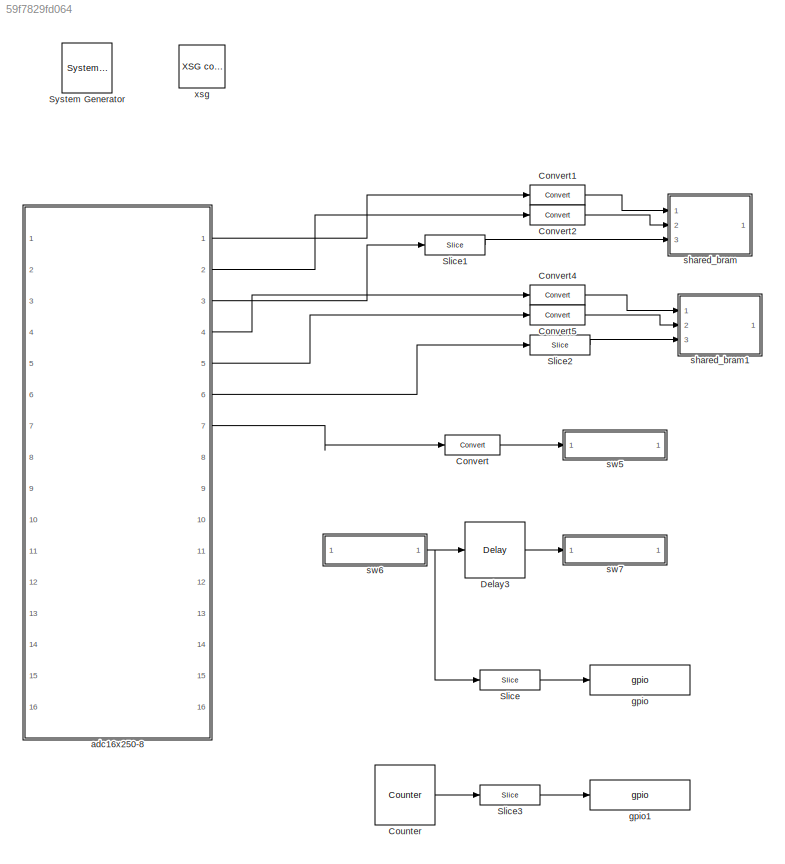
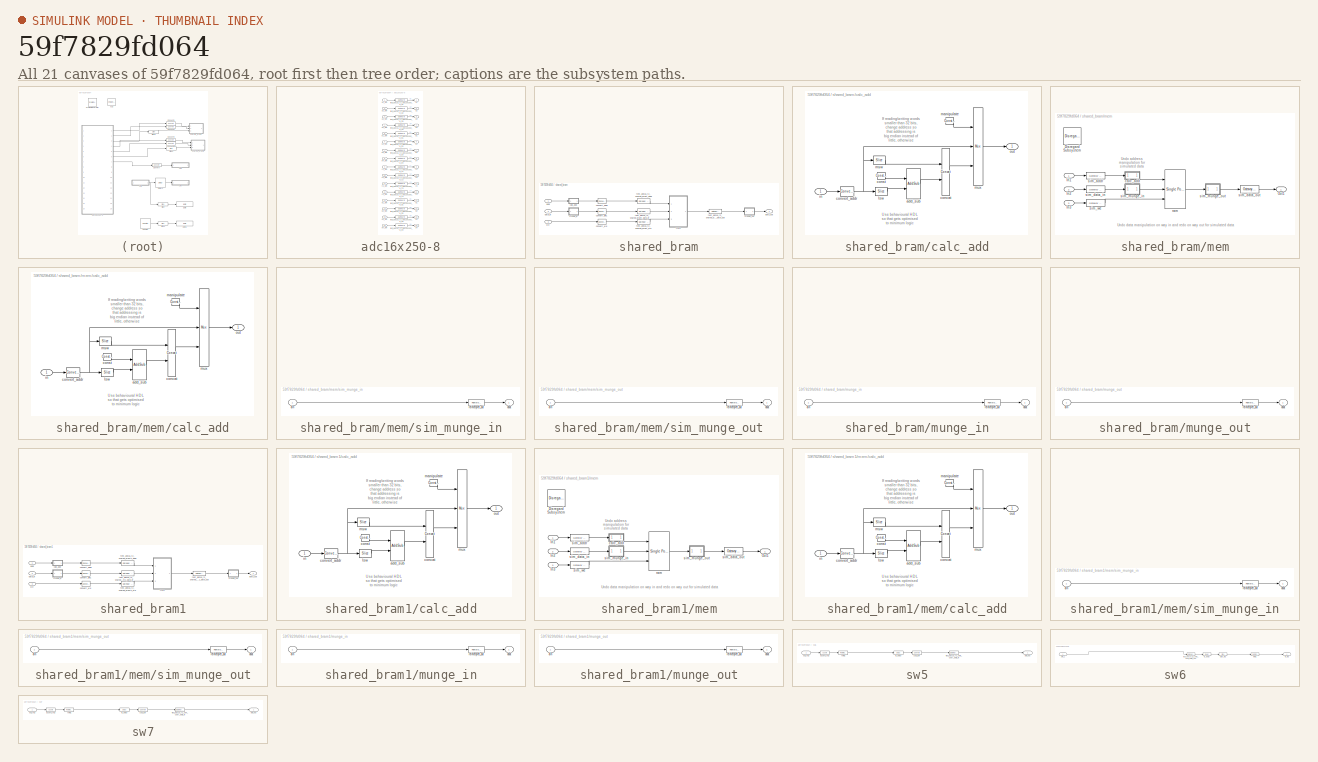
[diagram: thumbnail index - all 21 canvases of the model, root first then tree order]
MODEL slx_59f7829fd064
KIND model
BLOCK [Reference]  System Generator  REF=xbsIndex_r4/ System Generator
  AttributesFormatString = System\nGenerator
  Impl_file = ISE Defaults
  Ports = []
  SourceBlock = xbsIndex_r4/ System Generator
  SourceType = Xilinx System Generator Block
  Synth_file = XST Defaults
  Tag = genX
  UserDataPersistent = on
  block_type = sysgen
  clock_wrapper = Clock Enables
  core_generation = According to Block Masks
  dbl_ovrd = According to Block Masks
  dcm_input_clock_period = 100
  deprecated_control = off
  directory = ./test_adc16_r2/sysgen
  eval_field = 0
  has_advanced_control = 0
  incr_netlist = off
  infoedit = System Generator
  package = ff1759
  part = xc6vsx475t
  proj_type = Project Navigator
  run_coregen = off
  sg_icon_stat = 50,50,0,0,token,white,0,58c5b5770fe5f7c311f53dbc6e73f0f6,right,,[ ],[ ]
  sg_mask_display = fprintf('','COMMENT: begin icon graphics');\npatch([0 50 50 0 0 ],[0 0 50 50 0 ],[1 1 1 ]);\npatch([1.6375 16.81 27.31 37.81 48.31 27.31 12.1375 1.6375 ],[36.655 36.655 47.155 36.655 47.155 47.155 47.155 36.655 ],[0.933333 0.203922 0.141176 ]);\npatch([12.1375 27.31 16.81 1.6375 12.1375 ],[26.155 26.155 36.655 36.655 26.155 ],[0.698039 0.0313725 0.219608 ]);\npatch([1.6375 16.81 27.31 12.1375 1.6375 ]...<+327ch>
  sggui_pos = 232,343,464,400
  simulink_period = 1
  speed = -1
  synthesis_tool = XST
  sysclk_period = 5
  testbench = off
  trim_vbits = Everywhere in SubSystem
  xilinxfamily = virtex6
BLOCK [Reference] Convert  REF=xbsIndex_r4/Convert
  Ports = [1, 1]
  SourceBlock = xbsIndex_r4/Convert
  SourceType = Xilinx Type Converter Block
  arith_type = Unsigned
  bin_pt = 0
  block_type = convert
  block_version = 11.4
  dbl_ovrd = off
  en = off
  exp_bits = 8
  float_type = Single
  fraction_bits = 24
  gui_display_data_type = Fixed-point
  has_advanced_control = 0
  infoedit = Hardware notes: rounding and saturating require hardware resources; truncating and wrapping do not.
  latency = 2
  n_bits = 32
  overflow = Wrap
  pipeline = off
  quantization = Truncate
  sg_icon_stat = 55,20,1,1,white,blue,0,b61d041b,right,,[ ],[ ]
  sg_mask_display = fprintf('','COMMENT: begin icon graphics');\npatch([0 55 55 0 0 ],[0 0 20 20 0 ],[0.77 0.82 0.91 ]);\nplot([0 55 55 0 0 ],[0 0 20 20 0 ]);\npatch([22.55 25.44 27.44 29.44 31.44 27.44 24.55 22.55 ],[12.22 12.22 14.22 12.22 14.22 14.22 14.22 12.22 ],[1 1 1 ]);\npatch([24.55 27.44 25.44 22.55 24.55 ],[10.22 10.22 12.22 12.22 10.22 ],[0.931 0.946 0.973 ]);\npatch([22.55 25.44 27.44 24.55 22.55 ],[8.22 8.22...<+393ch>  <repeated x5 — deduplicated; at blocks: Convert, Convert1, Convert2, Convert4, Convert5>
  sggui_pos = 20,20,636,521
  xl_area = [0,0,0,0,0,0,0]
  xl_use_area = off
BLOCK [Reference] Convert1  REF=xbsIndex_r4/Convert
  Ports = [1, 1]
  SourceBlock = xbsIndex_r4/Convert
  SourceType = Xilinx Type Converter Block
  arith_type = Unsigned
  bin_pt = 0
  block_type = convert
  block_version = 11.4
  dbl_ovrd = off
  en = off
  exp_bits = 8
  float_type = Single
  fraction_bits = 24
  gui_display_data_type = Fixed-point
  has_advanced_control = 0
  infoedit = Hardware notes: rounding and saturating require hardware resources; truncating and wrapping do not.
  latency = 2
  n_bits = 11
  overflow = Wrap
  pipeline = off
  quantization = Truncate
  sg_icon_stat = 55,20,1,1,white,blue,0,b61d041b,right,,[ ],[ ]
  sggui_pos = 20,20,636,521
  xl_area = [0,0,0,0,0,0,0]
  xl_use_area = off
BLOCK [Reference] Convert2  REF=xbsIndex_r4/Convert
  Ports = [1, 1]
  SourceBlock = xbsIndex_r4/Convert
  SourceType = Xilinx Type Converter Block
  arith_type = Unsigned
  bin_pt = 0
  block_type = convert
  block_version = 11.4
  dbl_ovrd = off
  en = off
  exp_bits = 8
  float_type = Single
  fraction_bits = 24
  gui_display_data_type = Fixed-point
  has_advanced_control = 0
  infoedit = Hardware notes: rounding and saturating require hardware resources; truncating and wrapping do not.
  latency = 2
  n_bits = 32
  overflow = Wrap
  pipeline = off
  quantization = Truncate
  sg_icon_stat = 55,20,1,1,white,blue,0,b61d041b,right,,[ ],[ ]
  sggui_pos = 20,26,663,714
  xl_area = [0,0,0,0,0,0,0]
  xl_use_area = off
BLOCK [Reference] Convert4  REF=xbsIndex_r4/Convert
  Ports = [1, 1]
  SourceBlock = xbsIndex_r4/Convert
  SourceType = Xilinx Type Converter Block
  arith_type = Unsigned
  bin_pt = 0
  block_type = convert
  block_version = 11.4
  dbl_ovrd = off
  en = off
  exp_bits = 8
  float_type = Single
  fraction_bits = 24
  gui_display_data_type = Fixed-point
  has_advanced_control = 0
  infoedit = Hardware notes: rounding and saturating require hardware resources; truncating and wrapping do not.
  latency = 2
  n_bits = 11
  overflow = Wrap
  pipeline = off
  quantization = Truncate
  sg_icon_stat = 55,20,1,1,white,blue,0,b61d041b,right,,[ ],[ ]
  sggui_pos = 20,20,636,521
  xl_area = [0,0,0,0,0,0,0]
  xl_use_area = off
BLOCK [Reference] Convert5  REF=xbsIndex_r4/Convert
  Ports = [1, 1]
  SourceBlock = xbsIndex_r4/Convert
  SourceType = Xilinx Type Converter Block
  arith_type = Unsigned
  bin_pt = 0
  block_type = convert
  block_version = 11.4
  dbl_ovrd = off
  en = off
  exp_bits = 8
  float_type = Single
  fraction_bits = 24
  gui_display_data_type = Fixed-point
  has_advanced_control = 0
  infoedit = Hardware notes: rounding and saturating require hardware resources; truncating and wrapping do not.
  latency = 2
  n_bits = 32
  overflow = Wrap
  pipeline = off
  quantization = Truncate
  sg_icon_stat = 55,20,1,1,white,blue,0,b61d041b,right,,[ ],[ ]
  sggui_pos = 20,26,663,714
  xl_area = [0,0,0,0,0,0,0]
  xl_use_area = off
BLOCK [Reference] Counter  REF=xbsIndex_r4/Counter
  Ports = [0, 1]
  SourceBlock = xbsIndex_r4/Counter
  SourceType = Xilinx Counter Block
  arith_type = Unsigned
  bin_pt = 0
  block_type = counter
  cnt_by_val = 1
  cnt_to = Inf
  cnt_type = Free Running
  dbl_ovrd = off
  en = off
  explicit_period = on
  has_advanced_control = 0
  implementation = Fabric
  infoedit = Hardware notes: Free running counters are the least expensive in hardware.  A count limited counter is implemented by combining a counter with a comparator.
  load_pin = off
  n_bits = 27
  operation = Up
  period = 1
  rst = off
  sg_icon_stat = 60,60,0,1,white,blue,0,7ac47ef5,right,,[ ],[ ]
  sg_mask_display = fprintf('','COMMENT: begin icon graphics');\npatch([0 60 60 0 0 ],[0 0 60 60 0 ],[0.77 0.82 0.91 ]);\nplot([0 60 60 0 0 ],[0 0 60 60 0 ]);\npatch([12.2 23.76 31.76 39.76 47.76 31.76 20.2 12.2 ],[38.88 38.88 46.88 38.88 46.88 46.88 46.88 38.88 ],[1 1 1 ]);\npatch([20.2 31.76 23.76 12.2 20.2 ],[30.88 30.88 38.88 38.88 30.88 ],[0.931 0.946 0.973 ]);\npatch([12.2 23.76 31.76 20.2 12.2 ],[22.88 22.88 30.88 ...<+321ch>
  sggui_pos = 20,46,395,830
  start_count = 0
  use_behavioral_HDL = off
  xl_area = [0,0,0,0,0,0,0]
  xl_use_area = off
BLOCK [Reference] Delay3  REF=xbsIndex_r4/Delay
  Ports = [1, 1]
  SourceBlock = xbsIndex_r4/Delay
  SourceType = Xilinx Delay Block
  block_type = delay
  dbl_ovrd = off
  en = off
  has_advanced_control = 0
  infoedit = Hardware notes: A delay line is a chain, each link of which is an SRL16 followed by a flip-flop.
  infoeditControl = Selection of Reset will increase slice count due to use of real FFs and instead of SRLs
  latency = 5
  reg_retiming = off
  rst = off
  sg_icon_stat = 60,56,1,1,white,blue,0,ec356abf,right,,[ ],[ ]
  sg_mask_display = fprintf('','COMMENT: begin icon graphics');\npatch([0 60 60 0 0 ],[0 0 56 56 0 ],[0.77 0.82 0.91 ]);\nplot([0 60 60 0 0 ],[0 0 56 56 0 ]);\npatch([12.2 23.76 31.76 39.76 47.76 31.76 20.2 12.2 ],[36.88 36.88 44.88 36.88 44.88 44.88 44.88 36.88 ],[1 1 1 ]);\npatch([20.2 31.76 23.76 12.2 20.2 ],[28.88 28.88 36.88 36.88 28.88 ],[0.931 0.946 0.973 ]);\npatch([12.2 23.76 31.76 20.2 12.2 ],[20.88 20.88 28.88 ...<+308ch>
  sggui_pos = 20,45,447,409
  xl_area = [0,0,0,0,0,0,0]
  xl_use_area = off
BLOCK [Reference] Slice  REF=xbsIndex_r4/Slice
  Ports = [1, 1]
  SourceBlock = xbsIndex_r4/Slice
  SourceType = Xilinx Bit Slice Extractor Block
  base0 = LSB of Input
  base1 = MSB of Input
  bit0 = 0
  bit1 = 0
  block_type = slice
  block_version = 11.4
  boolean_output = on
  dbl_ovrd = off
  has_advanced_control = 0
  infoedit = Extracts a given range of bits from each input sample and presents it at the output.  The output type is ordinarily unsigned with binary point at zero, but can be Boolean when the slice is one bit wide.<br><br>Hardware notes: In hardware this block costs nothing.  <repeated x13 — deduplicated; at blocks: Slice, Slice1, Slice2, Slice3, lsw, msw, slice_reg>
  mode = Lower Bit Location + Width
  nbits = 3
  sg_icon_stat = 60,20,1,1,white,blue,0,1fd851a7,right,,[ ],[ ]
  sg_mask_display = fprintf('','COMMENT: begin icon graphics');\npatch([0 60 60 0 0 ],[0 0 20 20 0 ],[0.77 0.82 0.91 ]);\nplot([0 60 60 0 0 ],[0 0 20 20 0 ]);\npatch([25.55 28.44 30.44 32.44 34.44 30.44 27.55 25.55 ],[12.22 12.22 14.22 12.22 14.22 14.22 14.22 12.22 ],[1 1 1 ]);\npatch([27.55 30.44 28.44 25.55 27.55 ],[10.22 10.22 12.22 12.22 10.22 ],[0.931 0.946 0.973 ]);\npatch([25.55 28.44 30.44 27.55 25.55 ],[8.22 8.22...<+310ch>  <repeated x4 — deduplicated; at blocks: Slice, Slice1, Slice2, Slice3>
  sggui_pos = 20,26,687,621
BLOCK [Reference] Slice1  REF=xbsIndex_r4/Slice
  Ports = [1, 1]
  SourceBlock = xbsIndex_r4/Slice
  SourceType = Xilinx Bit Slice Extractor Block
  base0 = LSB of Input
  base1 = MSB of Input
  bit0 = 0
  bit1 = 0
  block_type = slice
  block_version = 11.4
  boolean_output = on
  dbl_ovrd = off
  has_advanced_control = 0
  mode = Lower Bit Location + Width
  nbits = 3
  sg_icon_stat = 60,20,1,1,white,blue,0,1fd851a7,right,,[ ],[ ]
  sggui_pos = 20,26,687,621
BLOCK [Reference] Slice2  REF=xbsIndex_r4/Slice
  Ports = [1, 1]
  SourceBlock = xbsIndex_r4/Slice
  SourceType = Xilinx Bit Slice Extractor Block
  base0 = LSB of Input
  base1 = MSB of Input
  bit0 = 0
  bit1 = 0
  block_type = slice
  block_version = 11.4
  boolean_output = on
  dbl_ovrd = off
  has_advanced_control = 0
  mode = Lower Bit Location + Width
  nbits = 3
  sg_icon_stat = 60,20,1,1,white,blue,0,1fd851a7,right,,[ ],[ ]
  sggui_pos = 20,26,687,621
BLOCK [Reference] Slice3  REF=xbsIndex_r4/Slice
  Ports = [1, 1]
  SourceBlock = xbsIndex_r4/Slice
  SourceType = Xilinx Bit Slice Extractor Block
  base0 = LSB of Input
  base1 = MSB of Input
  bit0 = 0
  bit1 = 0
  block_type = slice
  block_version = 11.4
  boolean_output = on
  dbl_ovrd = off
  has_advanced_control = 0
  mode = Upper Bit Location + Width
  nbits = 3
  sg_icon_stat = 60,20,1,1,white,blue,0,1fd851a7,right,,[ ],[ ]
  sggui_pos = 20,26,687,621
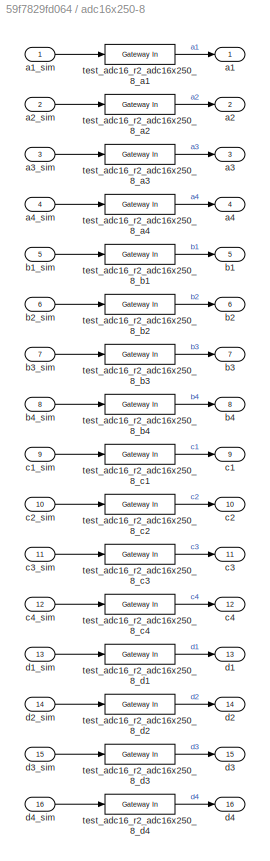
BLOCK [SubSystem] adc16x250-8
  AncestorBlock = xps_library/ADCs/adc16x250-8
  AttributesFormatString = r2 rev%<roach2_rev>\nzdok rev%<zdok_rev>
  FunctionWithSeparateData = off
  MaskHideContents = off
  MinAlgLoopOccurrences = off
  Opaque = off
  Ports = [16, 16]
  PropExecContextOutsideSubsystem = off
  RTWSystemCode = Auto
  RequestExecContextInheritance = off
  Tag = xps:adc16
  UserDataPersistent = on
BLOCK [Outport] adc16x250-8/a1
  IconDisplay = Port number
BLOCK [Inport] adc16x250-8/a1_sim
  IconDisplay = Port number
BLOCK [Outport] adc16x250-8/a2
  IconDisplay = Port number
  Port = 2
BLOCK [Inport] adc16x250-8/a2_sim
  IconDisplay = Port number
  Port = 2
BLOCK [Outport] adc16x250-8/a3
  IconDisplay = Port number
  Port = 3
BLOCK [Inport] adc16x250-8/a3_sim
  IconDisplay = Port number
  Port = 3
BLOCK [Outport] adc16x250-8/a4
  IconDisplay = Port number
  Port = 4
BLOCK [Inport] adc16x250-8/a4_sim
  IconDisplay = Port number
  Port = 4
BLOCK [Outport] adc16x250-8/b1
  IconDisplay = Port number
  Port = 5
BLOCK [Inport] adc16x250-8/b1_sim
  IconDisplay = Port number
  Port = 5
BLOCK [Outport] adc16x250-8/b2
  IconDisplay = Port number
  Port = 6
BLOCK [Inport] adc16x250-8/b2_sim
  IconDisplay = Port number
  Port = 6
BLOCK [Outport] adc16x250-8/b3
  IconDisplay = Port number
  Port = 7
BLOCK [Inport] adc16x250-8/b3_sim
  IconDisplay = Port number
  Port = 7
BLOCK [Outport] adc16x250-8/b4
  IconDisplay = Port number
  Port = 8
BLOCK [Inport] adc16x250-8/b4_sim
  IconDisplay = Port number
  Port = 8
BLOCK [Outport] adc16x250-8/c1
  IconDisplay = Port number
  Port = 9
BLOCK [Inport] adc16x250-8/c1_sim
  IconDisplay = Port number
  Port = 9
BLOCK [Outport] adc16x250-8/c2
  IconDisplay = Port number
  Port = 10
BLOCK [Inport] adc16x250-8/c2_sim
  IconDisplay = Port number
  Port = 10
BLOCK [Outport] adc16x250-8/c3
  IconDisplay = Port number
  Port = 11
BLOCK [Inport] adc16x250-8/c3_sim
  IconDisplay = Port number
  Port = 11
BLOCK [Outport] adc16x250-8/c4
  IconDisplay = Port number
  Port = 12
BLOCK [Inport] adc16x250-8/c4_sim
  IconDisplay = Port number
  Port = 12
BLOCK [Outport] adc16x250-8/d1
  IconDisplay = Port number
  Port = 13
BLOCK [Inport] adc16x250-8/d1_sim
  IconDisplay = Port number
  Port = 13
BLOCK [Outport] adc16x250-8/d2
  IconDisplay = Port number
  Port = 14
BLOCK [Inport] adc16x250-8/d2_sim
  IconDisplay = Port number
  Port = 14
BLOCK [Outport] adc16x250-8/d3
  IconDisplay = Port number
  Port = 15
BLOCK [Inport] adc16x250-8/d3_sim
  IconDisplay = Port number
  Port = 15
BLOCK [Outport] adc16x250-8/d4
  IconDisplay = Port number
  Port = 16
BLOCK [Inport] adc16x250-8/d4_sim
  IconDisplay = Port number
  Port = 16
BLOCK [Reference] adc16x250-8/test_adc16_r2_adc16x250_8_a1  REF=xbsIndex_r4/Gateway In
  ADCChannel = '1'
  LOCs = {}
  Ports = [1, 1]
  SourceBlock = xbsIndex_r4/Gateway In
  SourceType = Xilinx Gateway In Block
  UseAsADC = off
  arith_type = Signed  (2's comp)
  bin_pt = 7
  block_type = gatewayin
  dbl_ovrd = off
  exp_width = 8
  frac_width = 24
  gui_display_data_type = Fixed-point
  has_advanced_control = 0
  hdl_port = on
  infoedit = Gateway in block.  Converts inputs of type Simulink integer, single, double and fixed-point to  Xilinx fixed-point or floating-point data type.<br><br>Hardware notes:  In hardware these blocks become top level input ports.  <repeated x21 — deduplicated; at blocks: test_adc16_r2_adc16x250_8_a1, test_adc16_r2_adc16x250_8_a2, test_adc16_r2_adc16x250_8_a3, test_adc16_r2_adc16x250_8_a4, test_adc16_r2_adc16x250_8_b1, test_adc16_r2_adc16x250_8_b2, test_adc16_r2_adc16x250_8_b3, test_adc16_r2_adc16x250_8_b4, test_adc16_r2_adc16x250_8_c1, test_adc16_r2_adc16x250_8_c2, test_adc16_r2_adc16x250_8_c3, test_adc16_r2_adc16x250_8_c4, test_adc16_r2_adc16x250_8_d1, test_adc16_r2_adc16x250_8_d2, test_adc16_r2_adc16x250_8_d3, test_adc16_r2_adc16x250_8_d4, +4 more>
  inherit_from_input = off
  locs_specified = off
  n_bits = 8
  overflow = Saturate
  period = 1
  preci_type = Single
  quantization = Round  (unbiased: +/- Inf)
  sg_icon_stat = 70,20,1,1,white,yellow,1,00d3666e,right,,[ ],[ ]
  sg_mask_display = fprintf('','COMMENT: begin icon graphics');\npatch([0 70 70 0 0 ],[0 0 20 20 0 ],[0.95 0.93 0.65 ]);\nplot([0 70 70 0 0 ],[0 0 20 20 0 ]);\npatch([30.55 33.44 35.44 37.44 39.44 35.44 32.55 30.55 ],[12.22 12.22 14.22 12.22 14.22 14.22 14.22 12.22 ],[1 1 1 ]);\npatch([32.55 35.44 33.44 30.55 32.55 ],[10.22 10.22 12.22 12.22 10.22 ],[0.985 0.979 0.895 ]);\npatch([30.55 33.44 35.44 32.55 30.55 ],[8.22 8.22...<+383ch>  <repeated x16 — deduplicated; at blocks: test_adc16_r2_adc16x250_8_a1, test_adc16_r2_adc16x250_8_a2, test_adc16_r2_adc16x250_8_a3, test_adc16_r2_adc16x250_8_a4, test_adc16_r2_adc16x250_8_b1, test_adc16_r2_adc16x250_8_b2, test_adc16_r2_adc16x250_8_b3, test_adc16_r2_adc16x250_8_b4, test_adc16_r2_adc16x250_8_c1, test_adc16_r2_adc16x250_8_c2, test_adc16_r2_adc16x250_8_c3, test_adc16_r2_adc16x250_8_c4, test_adc16_r2_adc16x250_8_d1, test_adc16_r2_adc16x250_8_d2, test_adc16_r2_adc16x250_8_d3, test_adc16_r2_adc16x250_8_d4>
  sggui_pos = -1,-1,-1,-1
  timing_constraint = None
  xl_area = [0,0,0,0,0,0,0]
  xl_use_area = off
BLOCK [Reference] adc16x250-8/test_adc16_r2_adc16x250_8_a2  REF=xbsIndex_r4/Gateway In
  ADCChannel = '1'
  LOCs = {}
  Ports = [1, 1]
  SourceBlock = xbsIndex_r4/Gateway In
  SourceType = Xilinx Gateway In Block
  UseAsADC = off
  arith_type = Signed  (2's comp)
  bin_pt = 7
  block_type = gatewayin
  dbl_ovrd = off
  exp_width = 8
  frac_width = 24
  gui_display_data_type = Fixed-point
  has_advanced_control = 0
  hdl_port = on
  inherit_from_input = off
  locs_specified = off
  n_bits = 8
  overflow = Saturate
  period = 1
  preci_type = Single
  quantization = Round  (unbiased: +/- Inf)
  sg_icon_stat = 70,20,1,1,white,yellow,1,00d3666e,right,,[ ],[ ]
  sggui_pos = -1,-1,-1,-1
  timing_constraint = None
  xl_area = [0,0,0,0,0,0,0]
  xl_use_area = off
BLOCK [Reference] adc16x250-8/test_adc16_r2_adc16x250_8_a3  REF=xbsIndex_r4/Gateway In
  ADCChannel = '1'
  LOCs = {}
  Ports = [1, 1]
  SourceBlock = xbsIndex_r4/Gateway In
  SourceType = Xilinx Gateway In Block
  UseAsADC = off
  arith_type = Signed  (2's comp)
  bin_pt = 7
  block_type = gatewayin
  dbl_ovrd = off
  exp_width = 8
  frac_width = 24
  gui_display_data_type = Fixed-point
  has_advanced_control = 0
  hdl_port = on
  inherit_from_input = off
  locs_specified = off
  n_bits = 8
  overflow = Saturate
  period = 1
  preci_type = Single
  quantization = Round  (unbiased: +/- Inf)
  sg_icon_stat = 70,20,1,1,white,yellow,1,00d3666e,right,,[ ],[ ]
  sggui_pos = -1,-1,-1,-1
  timing_constraint = None
  xl_area = [0,0,0,0,0,0,0]
  xl_use_area = off
BLOCK [Reference] adc16x250-8/test_adc16_r2_adc16x250_8_a4  REF=xbsIndex_r4/Gateway In
  ADCChannel = '1'
  LOCs = {}
  Ports = [1, 1]
  SourceBlock = xbsIndex_r4/Gateway In
  SourceType = Xilinx Gateway In Block
  UseAsADC = off
  arith_type = Signed  (2's comp)
  bin_pt = 7
  block_type = gatewayin
  dbl_ovrd = off
  exp_width = 8
  frac_width = 24
  gui_display_data_type = Fixed-point
  has_advanced_control = 0
  hdl_port = on
  inherit_from_input = off
  locs_specified = off
  n_bits = 8
  overflow = Saturate
  period = 1
  preci_type = Single
  quantization = Round  (unbiased: +/- Inf)
  sg_icon_stat = 70,20,1,1,white,yellow,1,00d3666e,right,,[ ],[ ]
  sggui_pos = -1,-1,-1,-1
  timing_constraint = None
  xl_area = [0,0,0,0,0,0,0]
  xl_use_area = off
BLOCK [Reference] adc16x250-8/test_adc16_r2_adc16x250_8_b1  REF=xbsIndex_r4/Gateway In
  ADCChannel = '1'
  LOCs = {}
  Ports = [1, 1]
  SourceBlock = xbsIndex_r4/Gateway In
  SourceType = Xilinx Gateway In Block
  UseAsADC = off
  arith_type = Signed  (2's comp)
  bin_pt = 7
  block_type = gatewayin
  dbl_ovrd = off
  exp_width = 8
  frac_width = 24
  gui_display_data_type = Fixed-point
  has_advanced_control = 0
  hdl_port = on
  inherit_from_input = off
  locs_specified = off
  n_bits = 8
  overflow = Saturate
  period = 1
  preci_type = Single
  quantization = Round  (unbiased: +/- Inf)
  sg_icon_stat = 70,20,1,1,white,yellow,1,00d3666e,right,,[ ],[ ]
  sggui_pos = -1,-1,-1,-1
  timing_constraint = None
  xl_area = [0,0,0,0,0,0,0]
  xl_use_area = off
BLOCK [Reference] adc16x250-8/test_adc16_r2_adc16x250_8_b2  REF=xbsIndex_r4/Gateway In
  ADCChannel = '1'
  LOCs = {}
  Ports = [1, 1]
  SourceBlock = xbsIndex_r4/Gateway In
  SourceType = Xilinx Gateway In Block
  UseAsADC = off
  arith_type = Signed  (2's comp)
  bin_pt = 7
  block_type = gatewayin
  dbl_ovrd = off
  exp_width = 8
  frac_width = 24
  gui_display_data_type = Fixed-point
  has_advanced_control = 0
  hdl_port = on
  inherit_from_input = off
  locs_specified = off
  n_bits = 8
  overflow = Saturate
  period = 1
  preci_type = Single
  quantization = Round  (unbiased: +/- Inf)
  sg_icon_stat = 70,20,1,1,white,yellow,1,00d3666e,right,,[ ],[ ]
  sggui_pos = -1,-1,-1,-1
  timing_constraint = None
  xl_area = [0,0,0,0,0,0,0]
  xl_use_area = off
BLOCK [Reference] adc16x250-8/test_adc16_r2_adc16x250_8_b3  REF=xbsIndex_r4/Gateway In
  ADCChannel = '1'
  LOCs = {}
  Ports = [1, 1]
  SourceBlock = xbsIndex_r4/Gateway In
  SourceType = Xilinx Gateway In Block
  UseAsADC = off
  arith_type = Signed  (2's comp)
  bin_pt = 7
  block_type = gatewayin
  dbl_ovrd = off
  exp_width = 8
  frac_width = 24
  gui_display_data_type = Fixed-point
  has_advanced_control = 0
  hdl_port = on
  inherit_from_input = off
  locs_specified = off
  n_bits = 8
  overflow = Saturate
  period = 1
  preci_type = Single
  quantization = Round  (unbiased: +/- Inf)
  sg_icon_stat = 70,20,1,1,white,yellow,1,00d3666e,right,,[ ],[ ]
  sggui_pos = -1,-1,-1,-1
  timing_constraint = None
  xl_area = [0,0,0,0,0,0,0]
  xl_use_area = off
BLOCK [Reference] adc16x250-8/test_adc16_r2_adc16x250_8_b4  REF=xbsIndex_r4/Gateway In
  ADCChannel = '1'
  LOCs = {}
  Ports = [1, 1]
  SourceBlock = xbsIndex_r4/Gateway In
  SourceType = Xilinx Gateway In Block
  UseAsADC = off
  arith_type = Signed  (2's comp)
  bin_pt = 7
  block_type = gatewayin
  dbl_ovrd = off
  exp_width = 8
  frac_width = 24
  gui_display_data_type = Fixed-point
  has_advanced_control = 0
  hdl_port = on
  inherit_from_input = off
  locs_specified = off
  n_bits = 8
  overflow = Saturate
  period = 1
  preci_type = Single
  quantization = Round  (unbiased: +/- Inf)
  sg_icon_stat = 70,20,1,1,white,yellow,1,00d3666e,right,,[ ],[ ]
  sggui_pos = -1,-1,-1,-1
  timing_constraint = None
  xl_area = [0,0,0,0,0,0,0]
  xl_use_area = off
BLOCK [Reference] adc16x250-8/test_adc16_r2_adc16x250_8_c1  REF=xbsIndex_r4/Gateway In
  ADCChannel = '1'
  LOCs = {}
  Ports = [1, 1]
  SourceBlock = xbsIndex_r4/Gateway In
  SourceType = Xilinx Gateway In Block
  UseAsADC = off
  arith_type = Signed  (2's comp)
  bin_pt = 7
  block_type = gatewayin
  dbl_ovrd = off
  exp_width = 8
  frac_width = 24
  gui_display_data_type = Fixed-point
  has_advanced_control = 0
  hdl_port = on
  inherit_from_input = off
  locs_specified = off
  n_bits = 8
  overflow = Saturate
  period = 1
  preci_type = Single
  quantization = Round  (unbiased: +/- Inf)
  sg_icon_stat = 70,20,1,1,white,yellow,1,00d3666e,right,,[ ],[ ]
  sggui_pos = -1,-1,-1,-1
  timing_constraint = None
  xl_area = [0,0,0,0,0,0,0]
  xl_use_area = off
BLOCK [Reference] adc16x250-8/test_adc16_r2_adc16x250_8_c2  REF=xbsIndex_r4/Gateway In
  ADCChannel = '1'
  LOCs = {}
  Ports = [1, 1]
  SourceBlock = xbsIndex_r4/Gateway In
  SourceType = Xilinx Gateway In Block
  UseAsADC = off
  arith_type = Signed  (2's comp)
  bin_pt = 7
  block_type = gatewayin
  dbl_ovrd = off
  exp_width = 8
  frac_width = 24
  gui_display_data_type = Fixed-point
  has_advanced_control = 0
  hdl_port = on
  inherit_from_input = off
  locs_specified = off
  n_bits = 8
  overflow = Saturate
  period = 1
  preci_type = Single
  quantization = Round  (unbiased: +/- Inf)
  sg_icon_stat = 70,20,1,1,white,yellow,1,00d3666e,right,,[ ],[ ]
  sggui_pos = -1,-1,-1,-1
  timing_constraint = None
  xl_area = [0,0,0,0,0,0,0]
  xl_use_area = off
BLOCK [Reference] adc16x250-8/test_adc16_r2_adc16x250_8_c3  REF=xbsIndex_r4/Gateway In
  ADCChannel = '1'
  LOCs = {}
  Ports = [1, 1]
  SourceBlock = xbsIndex_r4/Gateway In
  SourceType = Xilinx Gateway In Block
  UseAsADC = off
  arith_type = Signed  (2's comp)
  bin_pt = 7
  block_type = gatewayin
  dbl_ovrd = off
  exp_width = 8
  frac_width = 24
  gui_display_data_type = Fixed-point
  has_advanced_control = 0
  hdl_port = on
  inherit_from_input = off
  locs_specified = off
  n_bits = 8
  overflow = Saturate
  period = 1
  preci_type = Single
  quantization = Round  (unbiased: +/- Inf)
  sg_icon_stat = 70,20,1,1,white,yellow,1,00d3666e,right,,[ ],[ ]
  sggui_pos = -1,-1,-1,-1
  timing_constraint = None
  xl_area = [0,0,0,0,0,0,0]
  xl_use_area = off
BLOCK [Reference] adc16x250-8/test_adc16_r2_adc16x250_8_c4  REF=xbsIndex_r4/Gateway In
  ADCChannel = '1'
  LOCs = {}
  Ports = [1, 1]
  SourceBlock = xbsIndex_r4/Gateway In
  SourceType = Xilinx Gateway In Block
  UseAsADC = off
  arith_type = Signed  (2's comp)
  bin_pt = 7
  block_type = gatewayin
  dbl_ovrd = off
  exp_width = 8
  frac_width = 24
  gui_display_data_type = Fixed-point
  has_advanced_control = 0
  hdl_port = on
  inherit_from_input = off
  locs_specified = off
  n_bits = 8
  overflow = Saturate
  period = 1
  preci_type = Single
  quantization = Round  (unbiased: +/- Inf)
  sg_icon_stat = 70,20,1,1,white,yellow,1,00d3666e,right,,[ ],[ ]
  sggui_pos = -1,-1,-1,-1
  timing_constraint = None
  xl_area = [0,0,0,0,0,0,0]
  xl_use_area = off
BLOCK [Reference] adc16x250-8/test_adc16_r2_adc16x250_8_d1  REF=xbsIndex_r4/Gateway In
  ADCChannel = '1'
  LOCs = {}
  Ports = [1, 1]
  SourceBlock = xbsIndex_r4/Gateway In
  SourceType = Xilinx Gateway In Block
  UseAsADC = off
  arith_type = Signed  (2's comp)
  bin_pt = 7
  block_type = gatewayin
  dbl_ovrd = off
  exp_width = 8
  frac_width = 24
  gui_display_data_type = Fixed-point
  has_advanced_control = 0
  hdl_port = on
  inherit_from_input = off
  locs_specified = off
  n_bits = 8
  overflow = Saturate
  period = 1
  preci_type = Single
  quantization = Round  (unbiased: +/- Inf)
  sg_icon_stat = 70,20,1,1,white,yellow,1,00d3666e,right,,[ ],[ ]
  sggui_pos = -1,-1,-1,-1
  timing_constraint = None
  xl_area = [0,0,0,0,0,0,0]
  xl_use_area = off
BLOCK [Reference] adc16x250-8/test_adc16_r2_adc16x250_8_d2  REF=xbsIndex_r4/Gateway In
  ADCChannel = '1'
  LOCs = {}
  Ports = [1, 1]
  SourceBlock = xbsIndex_r4/Gateway In
  SourceType = Xilinx Gateway In Block
  UseAsADC = off
  arith_type = Signed  (2's comp)
  bin_pt = 7
  block_type = gatewayin
  dbl_ovrd = off
  exp_width = 8
  frac_width = 24
  gui_display_data_type = Fixed-point
  has_advanced_control = 0
  hdl_port = on
  inherit_from_input = off
  locs_specified = off
  n_bits = 8
  overflow = Saturate
  period = 1
  preci_type = Single
  quantization = Round  (unbiased: +/- Inf)
  sg_icon_stat = 70,20,1,1,white,yellow,1,00d3666e,right,,[ ],[ ]
  sggui_pos = -1,-1,-1,-1
  timing_constraint = None
  xl_area = [0,0,0,0,0,0,0]
  xl_use_area = off
BLOCK [Reference] adc16x250-8/test_adc16_r2_adc16x250_8_d3  REF=xbsIndex_r4/Gateway In
  ADCChannel = '1'
  LOCs = {}
  Ports = [1, 1]
  SourceBlock = xbsIndex_r4/Gateway In
  SourceType = Xilinx Gateway In Block
  UseAsADC = off
  arith_type = Signed  (2's comp)
  bin_pt = 7
  block_type = gatewayin
  dbl_ovrd = off
  exp_width = 8
  frac_width = 24
  gui_display_data_type = Fixed-point
  has_advanced_control = 0
  hdl_port = on
  inherit_from_input = off
  locs_specified = off
  n_bits = 8
  overflow = Saturate
  period = 1
  preci_type = Single
  quantization = Round  (unbiased: +/- Inf)
  sg_icon_stat = 70,20,1,1,white,yellow,1,00d3666e,right,,[ ],[ ]
  sggui_pos = -1,-1,-1,-1
  timing_constraint = None
  xl_area = [0,0,0,0,0,0,0]
  xl_use_area = off
BLOCK [Reference] adc16x250-8/test_adc16_r2_adc16x250_8_d4  REF=xbsIndex_r4/Gateway In
  ADCChannel = '1'
  LOCs = {}
  Ports = [1, 1]
  SourceBlock = xbsIndex_r4/Gateway In
  SourceType = Xilinx Gateway In Block
  UseAsADC = off
  arith_type = Signed  (2's comp)
  bin_pt = 7
  block_type = gatewayin
  dbl_ovrd = off
  exp_width = 8
  frac_width = 24
  gui_display_data_type = Fixed-point
  has_advanced_control = 0
  hdl_port = on
  inherit_from_input = off
  locs_specified = off
  n_bits = 8
  overflow = Saturate
  period = 1
  preci_type = Single
  quantization = Round  (unbiased: +/- Inf)
  sg_icon_stat = 70,20,1,1,white,yellow,1,00d3666e,right,,[ ],[ ]
  sggui_pos = -1,-1,-1,-1
  timing_constraint = None
  xl_area = [0,0,0,0,0,0,0]
  xl_use_area = off
BLOCK [Reference] gpio  REF=xps_library/gpio  (lib defined in mdl_00b5cec29cd0, mdl_02ab6ecaa3d1, +5 more)
  Ports = [1, 1]
  SourceBlock = xps_library/gpio
  SourceType = gpio
  Tag = xps:gpio
  arith_type = Boolean
  bin_pt = 0
  bit_index = 0
  bitwidth = 1
  io_dir = out
  io_group = ROACH:led
  reg_clk_phase = 0
  reg_iob = on
  sample_period = 1
  termination = Pullup
  use_ddr = off
  use_single_ended = off
BLOCK [Reference] gpio1  REF=xps_library/gpio  (lib defined in mdl_00b5cec29cd0, mdl_02ab6ecaa3d1, +5 more)
  Ports = [1, 1]
  SourceBlock = xps_library/gpio
  SourceType = gpio
  Tag = xps:gpio
  arith_type = Boolean
  bin_pt = 0
  bit_index = 1
  bitwidth = 1
  io_dir = out
  io_group = ROACH:led
  reg_clk_phase = 0
  reg_iob = on
  sample_period = 1
  termination = Pullup
  use_ddr = off
  use_single_ended = off
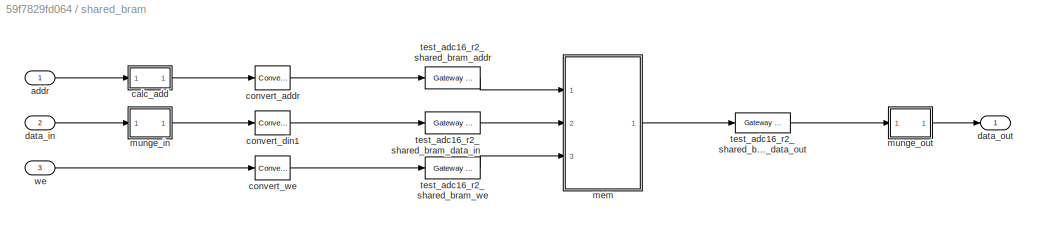
BLOCK [SubSystem] shared_bram
  AncestorBlock = xps_library/Shared BRAM
  FunctionWithSeparateData = off
  MaskHideContents = off
  MinAlgLoopOccurrences = off
  Opaque = off
  Ports = [3, 1]
  PropExecContextOutsideSubsystem = off
  RTWSystemCode = Auto
  RequestExecContextInheritance = off
  Tag = xps:bram
BLOCK [Inport] shared_bram/addr
  IconDisplay = Port number
BLOCK [SubSystem] shared_bram/calc_add
  FunctionWithSeparateData = off
  MaskHideContents = off
  MinAlgLoopOccurrences = off
  Opaque = off
  Ports = [1, 1]
  PropExecContextOutsideSubsystem = off
  RTWSystemCode = Auto
  RequestExecContextInheritance = off
BLOCK [Reference] shared_bram/calc_add/add_sub  REF=xbsIndex_r4/AddSub
  Ports = [2, 1]
  SourceBlock = xbsIndex_r4/AddSub
  SourceType = Xilinx Adder/Subtracter Block
  arith_type = Unsigned
  bin_pt = 0
  block_type = addsub
  block_version = 11.4
  dbl_ovrd = off
  en = off
  has_advanced_control = 0
  hw_selection = Fabric
  latency = 0
  mode = Subtraction
  n_bits = max(1, log2(32/data_width))
  overflow = Wrap
  pipelined = off
  precision = User Defined
  quantization = Truncate
  sg_icon_stat = 35,78,2,1,white,blue,0,32e1f85f,right,,[ ],[ ]
  sg_mask_display = fprintf('','COMMENT: begin icon graphics');\npatch([0 60 60 0 0 ],[0 0 58 58 0 ],[0.77 0.82 0.91 ]);\nplot([0 60 60 0 0 ],[0 0 58 58 0 ]);\npatch([12.2 23.76 31.76 39.76 47.76 31.76 20.2 12.2 ],[37.88 37.88 45.88 37.88 45.88 45.88 45.88 37.88 ],[1 1 1 ]);\npatch([20.2 31.76 23.76 12.2 20.2 ],[29.88 29.88 37.88 37.88 29.88 ],[0.931 0.946 0.973 ]);\npatch([12.2 23.76 31.76 20.2 12.2 ],[21.88 21.88 29.88 ...<+411ch>  <repeated x4 — deduplicated; at blocks: add_sub>
  sggui_pos = 24,152,420,360
  use_behavioral_HDL = on
  use_carryin = off
  use_carryout = off
  xl_area = [0,0,0,0,0,0,0]
  xl_use_area = off
BLOCK [Reference] shared_bram/calc_add/concat  REF=xbsIndex_r4/Concat
  Ports = [2, 1]
  SourceBlock = xbsIndex_r4/Concat
  SourceType = Xilinx Bus Concatenator Block
  block_type = concat
  block_version = 11.4
  dbl_ovrd = off
  has_advanced_control = 0
  infoedit = Concatenates two or more inputs.  Output will be cast to an unsigned value with the binary point at zero.
  num_inputs = 2
  sg_icon_stat = 20,120,2,1,white,blue,0,16398980,right,,[ ],[ ]
  sg_mask_display = fprintf('','COMMENT: begin icon graphics');\npatch([0 20 20 0 0 ],[0 0 120 120 0 ],[0.77 0.82 0.91 ]);\nplot([0 20 20 0 0 ],[0 0 120 120 0 ]);\npatch([5.55 8.44 10.44 12.44 14.44 10.44 7.55 5.55 ],[62.22 62.22 64.22 62.22 64.22 64.22 64.22 62.22 ],[1 1 1 ]);\npatch([7.55 10.44 8.44 5.55 7.55 ],[60.22 60.22 62.22 62.22 60.22 ],[0.931 0.946 0.973 ]);\npatch([5.55 8.44 10.44 7.55 5.55 ],[58.22 58.22 60.22...<+402ch>  <repeated x4 — deduplicated; at blocks: concat>
  sggui_pos = -1,-1,-1,-1
BLOCK [Reference] shared_bram/calc_add/const  REF=xbsIndex_r4/Constant
  Ports = [0, 1]
  SourceBlock = xbsIndex_r4/Constant
  SourceType = Xilinx Constant Block Block
  arith_type = Unsigned
  bin_pt = 0
  block_type = constant
  block_version = 11.4
  carry = CIN
  const = max(0, 32/data_width-1)
  dbl_ovrd = off
  dsp48_infoedit = The use of this block for DSP48 instructions is deprecated.  Please use the Opmode block.
  equ = P=C
  exp_width = 8
  explicit_period = on
  frac_width = 24
  gui_display_data_type = Fixed-point
  has_advanced_control = 0
  inp1 = P
  inp2 = PCIN>>17
  n_bits = max(1, log2(32/data_width))
  opr = +
  opselect = C
  period = sample_rate
  preci_type = Single
  sg_icon_stat = 20,18,0,1,white,blue,0,bf4ddd8b,right,,[ ],[ ]
  sg_list_contents = {'table'=>{'carry'=>'popup(0|1|CIN|~SIGN(P or PCIN)|~SIGN(A*B or A:B)|~SIGND(A*B or A:B))','inp1'=>'popup(0|P|A:B|A*B|C|P+C|A:B+C)','inp2'=>'popup(0|PCIN|P|C|PCIN>>17|P>>17)','opselect'=>'popup(C + A*B|PCIN + A*B|P + A*B|A * B|C + A:B|C - A:B|C|Custom)','userSelections'=>{'carry'=>'CIN','inp1'=>'P','inp2'=>'PCIN>>17','opselect'=>'C'}}}  <repeated x8 — deduplicated; at blocks: const, manipulate>
  sg_mask_display = fprintf('','COMMENT: begin icon graphics');\npatch([0 55 55 0 0 ],[0 0 26 26 0 ],[0.77 0.82 0.91 ]);\nplot([0 55 55 0 0 ],[0 0 26 26 0 ]);\npatch([20.325 24.66 27.66 30.66 33.66 27.66 23.325 20.325 ],[16.33 16.33 19.33 16.33 19.33 19.33 19.33 16.33 ],[1 1 1 ]);\npatch([23.325 27.66 24.66 20.325 23.325 ],[13.33 13.33 16.33 16.33 13.33 ],[0.931 0.946 0.973 ]);\npatch([20.325 24.66 27.66 23.325 20.325 ],[...<+323ch>  <repeated x8 — deduplicated; at blocks: const, manipulate>
  sggui_pos = 536,513,474,439
BLOCK [Reference] shared_bram/calc_add/convert_addr  REF=xbsIndex_r4/Convert
  Ports = [1, 1]
  SourceBlock = xbsIndex_r4/Convert
  SourceType = Xilinx Type Converter Block
  arith_type = Unsigned
  bin_pt = 0
  block_type = convert
  block_version = 9.1.01
  dbl_ovrd = off
  en = off
  exp_bits = 8
  float_type = Single
  fraction_bits = 24
  gui_display_data_type = Fixed-point
  has_advanced_control = 0
  infoedit = Hardware notes: rounding and saturating require hardware resources; truncating and wrapping do not.
  latency = 0
  n_bits = addr_width
  overflow = Wrap
  pipeline = off
  quantization = Truncate
  sg_icon_stat = 35,24,1,1,white,blue,0,edca21da,right,,[ ],[ ]
  sg_mask_display = fprintf('','COMMENT: begin icon graphics');\npatch([0 45 45 0 0 ],[0 0 30 30 0 ],[0.77 0.82 0.91 ]);\nplot([0 45 45 0 0 ],[0 0 30 30 0 ]);\npatch([13.1 18.88 22.88 26.88 30.88 22.88 17.1 13.1 ],[19.44 19.44 23.44 19.44 23.44 23.44 23.44 19.44 ],[1 1 1 ]);\npatch([17.1 22.88 18.88 13.1 17.1 ],[15.44 15.44 19.44 19.44 15.44 ],[0.931 0.946 0.973 ]);\npatch([13.1 18.88 22.88 17.1 13.1 ],[11.44 11.44 15.44 ...<+303ch>  <repeated x4 — deduplicated; at blocks: convert_addr>
  sggui_pos = 21,51,636,521
  xl_area = [0, 0, 0, 0, 0, 0, 0]
  xl_use_area = off
BLOCK [Inport] shared_bram/calc_add/in
  IconDisplay = Port number
BLOCK [Reference] shared_bram/calc_add/lsw  REF=xbsIndex_r4/Slice
  Ports = [1, 1]
  SourceBlock = xbsIndex_r4/Slice
  SourceType = Xilinx Bit Slice Extractor Block
  base0 = LSB of Input
  base1 = MSB of Input
  bit0 = 0
  bit1 = 0
  block_type = slice
  block_version = 11.4
  boolean_output = off
  dbl_ovrd = off
  has_advanced_control = 0
  mode = Lower Bit Location + Width
  nbits = max(1, log2(32/data_width))
  sg_icon_stat = 30,22,1,1,white,blue,0,1fd851a7,right,,[ ],[ ]
  sg_mask_display = fprintf('','COMMENT: begin icon graphics');\npatch([0 60 60 0 0 ],[0 0 30 30 0 ],[0.77 0.82 0.91 ]);\nplot([0 60 60 0 0 ],[0 0 30 30 0 ]);\npatch([21.1 26.88 30.88 34.88 38.88 30.88 25.1 21.1 ],[19.44 19.44 23.44 19.44 23.44 23.44 23.44 19.44 ],[1 1 1 ]);\npatch([25.1 30.88 26.88 21.1 25.1 ],[15.44 15.44 19.44 19.44 15.44 ],[0.931 0.946 0.973 ]);\npatch([21.1 26.88 30.88 25.1 21.1 ],[11.44 11.44 15.44 ...<+304ch>  <repeated x8 — deduplicated; at blocks: lsw, msw>
  sggui_pos = 1059,231,540,482
BLOCK [Reference] shared_bram/calc_add/manipulate  REF=xbsIndex_r4/Constant
  Ports = [0, 1]
  SourceBlock = xbsIndex_r4/Constant
  SourceType = Xilinx Constant Block Block
  arith_type = Unsigned
  bin_pt = 0
  block_type = constant
  block_version = 11.4
  carry = CIN
  const = min(1, floor(32/data_width) - 1)
  dbl_ovrd = off
  dsp48_infoedit = The use of this block for DSP48 instructions is deprecated.  Please use the Opmode block.
  equ = P=C
  exp_width = 8
  explicit_period = on
  frac_width = 24
  gui_display_data_type = Fixed-point
  has_advanced_control = 0
  inp1 = P
  inp2 = PCIN>>17
  n_bits = 1
  opr = +
  opselect = C
  period = sample_rate
  preci_type = Single
  sg_icon_stat = 20,18,0,1,white,blue,0,bf4ddd8b,right,,[ ],[ ]
  sggui_pos = 445,457,474,461
BLOCK [Reference] shared_bram/calc_add/msw  REF=xbsIndex_r4/Slice
  Ports = [1, 1]
  SourceBlock = xbsIndex_r4/Slice
  SourceType = Xilinx Bit Slice Extractor Block
  base0 = LSB of Input
  base1 = MSB of Input
  bit0 = 0
  bit1 = 0
  block_type = slice
  block_version = 11.4
  boolean_output = off
  dbl_ovrd = off
  has_advanced_control = 0
  mode = Upper Bit Location + Width
  nbits = addr_width - max(1, log2(32/data_width))
  sg_icon_stat = 30,22,1,1,white,blue,0,1fd851a7,right,,[ ],[ ]
  sggui_pos = 956,177,540,482
BLOCK [Reference] shared_bram/calc_add/mux  REF=xbsIndex_r4/Mux
  Ports = [3, 1]
  SourceBlock = xbsIndex_r4/Mux
  SourceType = Xilinx Bus Multiplexer Block
  arith_type = Unsigned
  bin_pt = 14
  block_type = mux
  block_version = 11.4
  dbl_ovrd = off
  en = off
  has_advanced_control = 0
  inputs = 2
  latency = 0
  n_bits = 16
  overflow = Wrap
  precision = Full
  quantization = Truncate
  sg_icon_stat = 25,198,3,1,white,blue,3,eb98d690,right,,[ ],[ ]
  sg_mask_display = fprintf('','COMMENT: begin icon graphics');\npatch([0 25 25 0 0 ],[0 28.2857 169.714 198 0 ],[0.77 0.82 0.91 ]);\nplot([0 25 25 0 0 ],[0 28.2857 169.714 198 0 ]);\npatch([5.325 9.66 12.66 15.66 18.66 12.66 8.325 5.325 ],[102.33 102.33 105.33 102.33 105.33 105.33 105.33 102.33 ],[1 1 1 ]);\npatch([8.325 12.66 9.66 5.325 8.325 ],[99.33 99.33 102.33 102.33 99.33 ],[0.931 0.946 0.973 ]);\npatch([5.325 9.66...<+478ch>  <repeated x4 — deduplicated; at blocks: mux>
  sggui_pos = -1,-1,-1,-1
  xl_area = [0,0,0,0,0,0,0]
  xl_use_area = off
BLOCK [Outport] shared_bram/calc_add/out
  IconDisplay = Port number
BLOCK [Reference] shared_bram/convert_addr  REF=xbsIndex_r4/Convert
  Ports = [1, 1]
  SourceBlock = xbsIndex_r4/Convert
  SourceType = Xilinx Type Converter Block
  arith_type = Unsigned
  bin_pt = 0
  block_type = convert
  block_version = 9.1.01
  dbl_ovrd = off
  en = off
  exp_bits = 8
  float_type = Single
  fraction_bits = 24
  gui_display_data_type = Fixed-point
  has_advanced_control = 0
  infoedit = Hardware notes: rounding and saturating require hardware resources; truncating and wrapping do not.
  latency = 0
  n_bits = addr_width
  overflow = Wrap
  pipeline = off
  quantization = Truncate
  sg_icon_stat = 35,24,1,1,white,blue,0,edca21da,right,,[ ],[ ]
  sg_mask_display = fprintf('','COMMENT: begin icon graphics');\npatch([0 35 35 0 0 ],[0 0 24 24 0 ],[0.77 0.82 0.91 ]);\nplot([0 35 35 0 0 ],[0 0 24 24 0 ]);\npatch([10.325 14.66 17.66 20.66 23.66 17.66 13.325 10.325 ],[15.33 15.33 18.33 15.33 18.33 18.33 18.33 15.33 ],[1 1 1 ]);\npatch([13.325 17.66 14.66 10.325 13.325 ],[12.33 12.33 15.33 15.33 12.33 ],[0.931 0.946 0.973 ]);\npatch([10.325 14.66 17.66 13.325 10.325 ],[...<+321ch>  <repeated x6 — deduplicated; at blocks: convert_addr, convert_din1, convert_we>
  sggui_pos = 22,78,636,627
  xl_area = [0, 0, 0, 0, 0, 0, 0]
  xl_use_area = off
BLOCK [Reference] shared_bram/convert_din1  REF=xbsIndex_r4/Convert
  Ports = [1, 1]
  SourceBlock = xbsIndex_r4/Convert
  SourceType = Xilinx Type Converter Block
  arith_type = Unsigned
  bin_pt = 0
  block_type = convert
  block_version = 9.1.01
  dbl_ovrd = off
  en = off
  exp_bits = 8
  float_type = Single
  fraction_bits = 24
  gui_display_data_type = Fixed-point
  has_advanced_control = 0
  infoedit = Hardware notes: rounding and saturating require hardware resources; truncating and wrapping do not.
  latency = 0
  n_bits = 32
  overflow = Wrap
  pipeline = off
  quantization = Truncate
  sg_icon_stat = 35,24,1,1,white,blue,0,edca21da,right,,[ ],[ ]
  sggui_pos = 26,186,636,627
  xl_area = [0, 0, 0, 0, 0, 0, 0]
  xl_use_area = off
BLOCK [Reference] shared_bram/convert_we  REF=xbsIndex_r4/Convert
  Ports = [1, 1]
  SourceBlock = xbsIndex_r4/Convert
  SourceType = Xilinx Type Converter Block
  arith_type = Unsigned
  bin_pt = 0
  block_type = convert
  block_version = 9.1.01
  dbl_ovrd = off
  en = off
  exp_bits = 8
  float_type = Single
  fraction_bits = 24
  gui_display_data_type = Fixed-point
  has_advanced_control = 0
  infoedit = Hardware notes: rounding and saturating require hardware resources; truncating and wrapping do not.
  latency = 0
  n_bits = 1
  overflow = Wrap
  pipeline = off
  quantization = Truncate
  sg_icon_stat = 35,24,1,1,white,blue,0,edca21da,right,,[ ],[ ]
  sggui_pos = 21,51,636,627
  xl_area = [0, 0, 0, 0, 0, 0, 0]
  xl_use_area = off
BLOCK [Inport] shared_bram/data_in
  IconDisplay = Port number
  Port = 2
BLOCK [Outport] shared_bram/data_out
  IconDisplay = Port number
BLOCK [SubSystem] shared_bram/mem
  FunctionWithSeparateData = off
  MaskHideContents = off
  MinAlgLoopOccurrences = off
  Opaque = off
  Ports = [3, 1]
  PropExecContextOutsideSubsystem = off
  RTWSystemCode = Auto
  RequestExecContextInheritance = off
BLOCK [Reference] shared_bram/mem/Disregard Subsystem  REF=xbsIndex_r4/Disregard Subsystem
  AttributesFormatString = Disregard Subsystem\nFor Generation
  Ports = []
  SourceBlock = xbsIndex_r4/Disregard Subsystem
  SourceType = Xilinx Disregard Subsystem For Generation Block
  Tag = discardX
  block_type = disregard
  block_version = 9.1.01
  has_advanced_control = 0
  infoedit = Place this block into a subsystem to have System Generator ignore the subsystem during code generation. This block can be used in combination with the Simulation Multiplexer block to provide an alternative simulation model for another subsystem (e.g., to provide a simulation model for a black box).
  sg_icon_stat = 51,50,-1,-1,darkgray,black,0,0,right,
  sg_mask_display = fprintf('','COMMENT: begin icon graphics');\npatch([0 51 51 0 ],[0 0 50 50 ],[0.1 0.1 0.1]);\npatch([12 4 16 4 12 25 29 33 47 36 25 17 29 17 25 36 47 33 29 25 12 ],[5 13 25 37 45 45 41 45 45 34 45 37 25 13 5 16 5 5 9 5 5 ],[0.33 0.33 0.33]);\nplot([0 0 51 51 0 ],[0 50 50 0 0 ]);\nfprintf('','COMMENT: end icon graphics');\nfprintf('','COMMENT: begin icon text');\nfprintf('','COMMENT: end icon text');
  sggui_pos = -1,-1,-1,-1
BLOCK [Inport] shared_bram/mem/In1
  IconDisplay = Port number
BLOCK [Inport] shared_bram/mem/In2
  IconDisplay = Port number
  Port = 2
BLOCK [Inport] shared_bram/mem/In3
  IconDisplay = Port number
  Port = 3
BLOCK [Outport] shared_bram/mem/Out1
  IconDisplay = Port number
BLOCK [SubSystem] shared_bram/mem/calc_add
  FunctionWithSeparateData = off
  MaskHideContents = off
  MinAlgLoopOccurrences = off
  Opaque = off
  Ports = [1, 1]
  PropExecContextOutsideSubsystem = off
  RTWSystemCode = Auto
  RequestExecContextInheritance = off
BLOCK [Reference] shared_bram/mem/calc_add/add_sub  REF=xbsIndex_r4/AddSub
  Ports = [2, 1]
  SourceBlock = xbsIndex_r4/AddSub
  SourceType = Xilinx Adder/Subtracter Block
  arith_type = Unsigned
  bin_pt = 0
  block_type = addsub
  block_version = 11.4
  dbl_ovrd = off
  en = off
  has_advanced_control = 0
  hw_selection = Fabric
  latency = 0
  mode = Subtraction
  n_bits = max(1, log2(32/data_width))
  overflow = Wrap
  pipelined = off
  precision = User Defined
  quantization = Truncate
  sg_icon_stat = 35,78,2,1,white,blue,0,32e1f85f,right,,[ ],[ ]
  sggui_pos = 24,152,420,360
  use_behavioral_HDL = on
  use_carryin = off
  use_carryout = off
  xl_area = [0,0,0,0,0,0,0]
  xl_use_area = off
BLOCK [Reference] shared_bram/mem/calc_add/concat  REF=xbsIndex_r4/Concat
  Ports = [2, 1]
  SourceBlock = xbsIndex_r4/Concat
  SourceType = Xilinx Bus Concatenator Block
  block_type = concat
  block_version = 11.4
  dbl_ovrd = off
  has_advanced_control = 0
  infoedit = Concatenates two or more inputs.  Output will be cast to an unsigned value with the binary point at zero.
  num_inputs = 2
  sg_icon_stat = 20,120,2,1,white,blue,0,16398980,right,,[ ],[ ]
  sggui_pos = -1,-1,-1,-1
BLOCK [Reference] shared_bram/mem/calc_add/const  REF=xbsIndex_r4/Constant
  Ports = [0, 1]
  SourceBlock = xbsIndex_r4/Constant
  SourceType = Xilinx Constant Block Block
  arith_type = Unsigned
  bin_pt = 0
  block_type = constant
  block_version = 11.4
  carry = CIN
  const = max(0, 32/data_width-1)
  dbl_ovrd = off
  dsp48_infoedit = The use of this block for DSP48 instructions is deprecated.  Please use the Opmode block.
  equ = P=C
  exp_width = 8
  explicit_period = on
  frac_width = 24
  gui_display_data_type = Fixed-point
  has_advanced_control = 0
  inp1 = P
  inp2 = PCIN>>17
  n_bits = max(1, log2(32/data_width))
  opr = +
  opselect = C
  period = sample_rate
  preci_type = Single
  sg_icon_stat = 20,18,0,1,white,blue,0,bf4ddd8b,right,,[ ],[ ]
  sggui_pos = 536,513,474,439
BLOCK [Reference] shared_bram/mem/calc_add/convert_addr  REF=xbsIndex_r4/Convert
  Ports = [1, 1]
  SourceBlock = xbsIndex_r4/Convert
  SourceType = Xilinx Type Converter Block
  arith_type = Unsigned
  bin_pt = 0
  block_type = convert
  block_version = 9.1.01
  dbl_ovrd = off
  en = off
  exp_bits = 8
  float_type = Single
  fraction_bits = 24
  gui_display_data_type = Fixed-point
  has_advanced_control = 0
  infoedit = Hardware notes: rounding and saturating require hardware resources; truncating and wrapping do not.
  latency = 0
  n_bits = addr_width
  overflow = Wrap
  pipeline = off
  quantization = Truncate
  sg_icon_stat = 35,24,1,1,white,blue,0,edca21da,right,,[ ],[ ]
  sggui_pos = 21,51,636,521
  xl_area = [0, 0, 0, 0, 0, 0, 0]
  xl_use_area = off
BLOCK [Inport] shared_bram/mem/calc_add/in
  IconDisplay = Port number
BLOCK [Reference] shared_bram/mem/calc_add/lsw  REF=xbsIndex_r4/Slice
  Ports = [1, 1]
  SourceBlock = xbsIndex_r4/Slice
  SourceType = Xilinx Bit Slice Extractor Block
  base0 = LSB of Input
  base1 = MSB of Input
  bit0 = 0
  bit1 = 0
  block_type = slice
  block_version = 11.4
  boolean_output = off
  dbl_ovrd = off
  has_advanced_control = 0
  mode = Lower Bit Location + Width
  nbits = max(1, log2(32/data_width))
  sg_icon_stat = 30,22,1,1,white,blue,0,1fd851a7,right,,[ ],[ ]
  sggui_pos = 1059,231,540,482
BLOCK [Reference] shared_bram/mem/calc_add/manipulate  REF=xbsIndex_r4/Constant
  Ports = [0, 1]
  SourceBlock = xbsIndex_r4/Constant
  SourceType = Xilinx Constant Block Block
  arith_type = Unsigned
  bin_pt = 0
  block_type = constant
  block_version = 11.4
  carry = CIN
  const = min(1, floor(32/data_width) - 1)
  dbl_ovrd = off
  dsp48_infoedit = The use of this block for DSP48 instructions is deprecated.  Please use the Opmode block.
  equ = P=C
  exp_width = 8
  explicit_period = on
  frac_width = 24
  gui_display_data_type = Fixed-point
  has_advanced_control = 0
  inp1 = P
  inp2 = PCIN>>17
  n_bits = 1
  opr = +
  opselect = C
  period = sample_rate
  preci_type = Single
  sg_icon_stat = 20,18,0,1,white,blue,0,bf4ddd8b,right,,[ ],[ ]
  sggui_pos = 445,457,474,461
BLOCK [Reference] shared_bram/mem/calc_add/msw  REF=xbsIndex_r4/Slice
  Ports = [1, 1]
  SourceBlock = xbsIndex_r4/Slice
  SourceType = Xilinx Bit Slice Extractor Block
  base0 = LSB of Input
  base1 = MSB of Input
  bit0 = 0
  bit1 = 0
  block_type = slice
  block_version = 11.4
  boolean_output = off
  dbl_ovrd = off
  has_advanced_control = 0
  mode = Upper Bit Location + Width
  nbits = addr_width - max(1, log2(32/data_width))
  sg_icon_stat = 30,22,1,1,white,blue,0,1fd851a7,right,,[ ],[ ]
  sggui_pos = 956,177,540,482
BLOCK [Reference] shared_bram/mem/calc_add/mux  REF=xbsIndex_r4/Mux
  Ports = [3, 1]
  SourceBlock = xbsIndex_r4/Mux
  SourceType = Xilinx Bus Multiplexer Block
  arith_type = Unsigned
  bin_pt = 14
  block_type = mux
  block_version = 11.4
  dbl_ovrd = off
  en = off
  has_advanced_control = 0
  inputs = 2
  latency = 0
  n_bits = 16
  overflow = Wrap
  precision = Full
  quantization = Truncate
  sg_icon_stat = 25,198,3,1,white,blue,3,eb98d690,right,,[ ],[ ]
  sggui_pos = -1,-1,-1,-1
  xl_area = [0,0,0,0,0,0,0]
  xl_use_area = off
BLOCK [Outport] shared_bram/mem/calc_add/out
  IconDisplay = Port number
BLOCK [Reference] shared_bram/mem/ram  REF=xbsIndex_r4/Single Port RAM
  Ports = [3, 1]
  SourceBlock = xbsIndex_r4/Single Port RAM
  SourceType = Xilinx Single Port Random Access Memory Block
  block_type = spram
  block_version = 11.4
  dbl_ovrd = off
  depth = 2^addr_width
  distributed_mem = Block RAM
  en = off
  has_advanced_control = 0
  initVector = init_vals
  init_reg = 0
  latency = 1
  optimize = Area
  rst = off
  sg_icon_stat = 60,114,3,1,white,blue,0,afe23399,right,,[ ],[ ]
  sg_mask_display = fprintf('','COMMENT: begin icon graphics');\npatch([0 60 60 0 0 ],[0 0 114 114 0 ],[0.77 0.82 0.91 ]);\nplot([0 60 60 0 0 ],[0 0 114 114 0 ]);\npatch([12.2 23.76 31.76 39.76 47.76 31.76 20.2 12.2 ],[65.88 65.88 73.88 65.88 73.88 73.88 73.88 65.88 ],[1 1 1 ]);\npatch([20.2 31.76 23.76 12.2 20.2 ],[57.88 57.88 65.88 65.88 57.88 ],[0.931 0.946 0.973 ]);\npatch([12.2 23.76 31.76 20.2 12.2 ],[49.88 49.88 57...<+444ch>
  sggui_pos = 22,98,435,384
  write_mode = Read After Write
  xl_area = [0,0,0,0,0,0,0]
  xl_use_area = off
BLOCK [Reference] shared_bram/mem/sim_addr  REF=xbsIndex_r4/Gateway In
  ADCChannel = '1'
  LOCs = {}
  Ports = [1, 1]
  SourceBlock = xbsIndex_r4/Gateway In
  SourceType = Xilinx Gateway In Block
  UseAsADC = off
  arith_type = Unsigned
  bin_pt = 0
  block_type = gatewayin
  block_version = 9.1.01
  dbl_ovrd = off
  exp_width = 8
  frac_width = 24
  gui_display_data_type = Fixed-point
  has_advanced_control = 0
  hdl_port = on
  infoedit = Gateway in block.  Converts inputs of type Simulink integer, double and fixed point to  Xilinx fixed point type.<br><br>Hardware notes:  In hardware these blocks become top level input ports.  <repeated x4 — deduplicated; at blocks: sim_addr, sim_we>
  inherit_from_input = off
  locs_specified = off
  n_bits = addr_width
  overflow = Wrap
  period = sample_rate
  preci_type = Single
  quantization = Truncate
  sg_icon_stat = 55,20,1,1,white,yellow,1,00d3666e,right,,[ ],[ ]
  sg_mask_display = fprintf('','COMMENT: begin icon graphics');\npatch([0 65 65 0 0 ],[0 0 20 20 0 ],[0.95 0.93 0.65 ]);\nplot([0 65 65 0 0 ],[0 0 20 20 0 ]);\npatch([27.55 30.44 32.44 34.44 36.44 32.44 29.55 27.55 ],[12.22 12.22 14.22 12.22 14.22 14.22 14.22 12.22 ],[1 1 1 ]);\npatch([29.55 32.44 30.44 27.55 29.55 ],[10.22 10.22 12.22 12.22 10.22 ],[0.985 0.979 0.895 ]);\npatch([27.55 30.44 32.44 29.55 27.55 ],[8.22 8.22...<+383ch>  <repeated x4 — deduplicated; at blocks: sim_addr, sim_we>
  sggui_pos = 24,152,419,481
  sginterface = {'Nallatech'=>{'xdspkit'=>{'non_memory_mapped_port'=>'sim_addr'}},'Xilinx'=>{'jtaghwcosim'=>{'non_memory_mapped_port'=>'sim_addr'},'xdspkit'=>{'non_memory_mapped_port'=>'sim_addr'}}}
  timing_constraint = None
  xl_area = [0, 0, 0, 0, 0, 0, 0]
  xl_use_area = off
BLOCK [Reference] shared_bram/mem/sim_data_in  REF=xbsIndex_r4/Gateway In
  ADCChannel = '1'
  LOCs = {}
  Ports = [1, 1]
  SourceBlock = xbsIndex_r4/Gateway In
  SourceType = Xilinx Gateway In Block
  UseAsADC = off
  arith_type = Unsigned
  bin_pt = 0
  block_type = gatewayin
  block_version = 9.1.01
  dbl_ovrd = off
  exp_width = 8
  frac_width = 24
  gui_display_data_type = Fixed-point
  has_advanced_control = 0
  hdl_port = on
  inherit_from_input = off
  locs_specified = off
  n_bits = 32
  overflow = Wrap
  period = sample_rate
  preci_type = Single
  quantization = Truncate
  sg_icon_stat = 55,20,1,1,white,yellow,1,00d3666e,right,,[ ],[ ]
  sg_mask_display = fprintf('','COMMENT: begin icon graphics');\npatch([0 55 55 0 0 ],[0 0 20 20 0 ],[0.95 0.93 0.65 ]);\nplot([0 55 55 0 0 ],[0 0 20 20 0 ]);\npatch([22.55 25.44 27.44 29.44 31.44 27.44 24.55 22.55 ],[12.22 12.22 14.22 12.22 14.22 14.22 14.22 12.22 ],[1 1 1 ]);\npatch([24.55 27.44 25.44 22.55 24.55 ],[10.22 10.22 12.22 12.22 10.22 ],[0.985 0.979 0.895 ]);\npatch([22.55 25.44 27.44 24.55 22.55 ],[8.22 8.22...<+383ch>  <repeated x4 — deduplicated; at blocks: sim_data_in, test_adc16_r2_shared_bram_data_out, test_adc16_r2_shared_bram1_data_out>
  sggui_pos = 56,254,420,659
  sginterface = {'Nallatech'=>{'xdspkit'=>{'non_memory_mapped_port'=>'sim_data_in'}},'Xilinx'=>{'jtaghwcosim'=>{'non_memory_mapped_port'=>'sim_data_in'},'xdspkit'=>{'non_memory_mapped_port'=>'sim_data_in'}}}
  timing_constraint = None
  xl_area = [0, 0, 0, 0, 0, 0, 0]
  xl_use_area = off
BLOCK [Reference] shared_bram/mem/sim_data_out  REF=xbsIndex_r4/Gateway Out
  DACChannel = '1'
  LOCs = {'B21','B22','A22','B23','B19','C19','A20','A21','A23','B24','A24','A25','E18','D18','C18','B18'}
  Ports = [1, 1]
  SourceBlock = xbsIndex_r4/Gateway Out
  SourceType = Xilinx Gateway Out Block
  UseAsDAC = off
  block_type = gatewayout
  block_version = 9.1.01
  has_advanced_control = 0
  hdl_port = on
  infoedit = Gateway out block.  Converts Xilinx fixed point inputs into ouputs of type Simulink integer, double, or fixed point.<P><P>Hardware notes:  In hardware these blocks become top level output ports or are discarded, depending on how they are configured.  <repeated x8 — deduplicated; at blocks: sim_data_out, test_adc16_r2_shared_bram_addr, test_adc16_r2_shared_bram_data_in, test_adc16_r2_shared_bram_we, test_adc16_r2_shared_bram1_addr, test_adc16_r2_shared_bram1_data_in, test_adc16_r2_shared_bram1_we>
  inherit_from_input = off
  locs_specified = off
  sg_icon_stat = 55,22,1,1,white,yellow,1,cc31b7ac,right,,[ ],[ ]
  sg_mask_display = fprintf('','COMMENT: begin icon graphics');\npatch([0 55 55 0 0 ],[0 0 22 22 0 ],[0.95 0.93 0.65 ]);\nplot([0 55 55 0 0 ],[0 0 22 22 0 ]);\npatch([20.325 24.66 27.66 30.66 33.66 27.66 23.325 20.325 ],[14.33 14.33 17.33 14.33 17.33 17.33 17.33 14.33 ],[1 1 1 ]);\npatch([23.325 27.66 24.66 20.325 23.325 ],[11.33 11.33 14.33 14.33 11.33 ],[0.985 0.979 0.895 ]);\npatch([20.325 24.66 27.66 23.325 20.325 ],[...<+396ch>  <repeated x8 — deduplicated; at blocks: sim_data_out, test_adc16_r2_shared_bram_addr, test_adc16_r2_shared_bram_data_in, test_adc16_r2_shared_bram_we, test_adc16_r2_shared_bram1_addr, test_adc16_r2_shared_bram1_data_in, test_adc16_r2_shared_bram1_we>
  sggui_pos = 23,125,404,629
  sginterface = {'Nallatech'=>{'xdspkit'=>{'non_memory_mapped_port'=>'sim_data_out'}},'Xilinx'=>{'jtaghwcosim'=>{'non_memory_mapped_port'=>'sim_data_out'},'xdspkit'=>{'non_memory_mapped_port'=>'sim_data_out'}}}
  timing_constraint = None
  xl_area = [0, 0, 0, 0, 0, 0, 0]
  xl_use_area = off
BLOCK [SubSystem] shared_bram/mem/sim_munge_in
  AncestorBlock = casper_library_flow_control/munge
  AttributesFormatString = split:32\njoin:0\nUnsigned [32,0]
  FunctionWithSeparateData = off
  MaskHideContents = off
  MinAlgLoopOccurrences = off
  Opaque = off
  Ports = [1, 1]
  PropExecContextOutsideSubsystem = off
  RTWSystemCode = Auto
  RequestExecContextInheritance = off
  UserDataPersistent = on
BLOCK [Inport] shared_bram/mem/sim_munge_in/din
  IconDisplay = Port number
BLOCK [Outport] shared_bram/mem/sim_munge_in/dout
  IconDisplay = Port number
BLOCK [Reference] shared_bram/mem/sim_munge_in/reinterpret_out  REF=xbsIndex_r4/Reinterpret
  Ports = [1, 1]
  SourceBlock = xbsIndex_r4/Reinterpret
  SourceType = Xilinx Type Reinterpreter Block
  arith_type = Unsigned
  bin_pt = 0
  block_type = reinterpret
  force_arith_type = on
  force_bin_pt = on
  has_advanced_control = 0
  infoedit = Changes signal type without altering the binary representation.   You can change the signal between signed and unsigned, and relocate the binary point.<br><br>Hardware notes: In hardware this block costs nothing.<br><br>Example:  Suppose the input is 6 bits wide, signed, with 2 fractional bits, and the output is forced to unsigned with 0 fractional bits.  Then an input of -2.0 (1110.00 in binary 2...<+58ch>  <repeated x11 — deduplicated; at blocks: reinterpret_out, reint1>
  sg_icon_stat = 55,20,1,1,white,blue,0,6b04d0b0,right,,[ ],[ ]
  sg_mask_display = fprintf('','COMMENT: begin icon graphics');\npatch([0 55 55 0 0 ],[0 0 20 20 0 ],[0.77 0.82 0.91 ]);\nplot([0 55 55 0 0 ],[0 0 20 20 0 ]);\npatch([22.55 25.44 27.44 29.44 31.44 27.44 24.55 22.55 ],[12.22 12.22 14.22 12.22 14.22 14.22 14.22 12.22 ],[1 1 1 ]);\npatch([24.55 27.44 25.44 22.55 24.55 ],[10.22 10.22 12.22 12.22 10.22 ],[0.931 0.946 0.973 ]);\npatch([22.55 25.44 27.44 24.55 22.55 ],[8.22 8.22...<+300ch>  <repeated x8 — deduplicated; at blocks: reinterpret_out>
  sggui_pos = -1,-1,-1,-1
BLOCK [SubSystem] shared_bram/mem/sim_munge_out
  AncestorBlock = casper_library_flow_control/munge
  AttributesFormatString = split:32\njoin:0\nUnsigned [32,0]
  FunctionWithSeparateData = off
  MaskHideContents = off
  MinAlgLoopOccurrences = off
  Opaque = off
  Ports = [1, 1]
  PropExecContextOutsideSubsystem = off
  RTWSystemCode = Auto
  RequestExecContextInheritance = off
  UserDataPersistent = on
BLOCK [Inport] shared_bram/mem/sim_munge_out/din
  IconDisplay = Port number
BLOCK [Outport] shared_bram/mem/sim_munge_out/dout
  IconDisplay = Port number
BLOCK [Reference] shared_bram/mem/sim_munge_out/reinterpret_out  REF=xbsIndex_r4/Reinterpret
  Ports = [1, 1]
  SourceBlock = xbsIndex_r4/Reinterpret
  SourceType = Xilinx Type Reinterpreter Block
  arith_type = Unsigned
  bin_pt = 0
  block_type = reinterpret
  force_arith_type = on
  force_bin_pt = on
  has_advanced_control = 0
  sg_icon_stat = 55,20,1,1,white,blue,0,6b04d0b0,right,,[ ],[ ]
  sggui_pos = -1,-1,-1,-1
BLOCK [Reference] shared_bram/mem/sim_we  REF=xbsIndex_r4/Gateway In
  ADCChannel = '1'
  LOCs = {}
  Ports = [1, 1]
  SourceBlock = xbsIndex_r4/Gateway In
  SourceType = Xilinx Gateway In Block
  UseAsADC = off
  arith_type = Boolean
  bin_pt = 0
  block_type = gatewayin
  block_version = 9.1.01
  dbl_ovrd = off
  exp_width = 8
  frac_width = 24
  gui_display_data_type = Fixed-point
  has_advanced_control = 0
  hdl_port = on
  inherit_from_input = off
  locs_specified = off
  n_bits = 1
  overflow = Wrap
  period = sample_rate
  preci_type = Single
  quantization = Truncate
  sg_icon_stat = 55,20,1,1,white,yellow,1,00d3666e,right,,[ ],[ ]
  sggui_pos = -1,-1,-1,-1
  sginterface = {'Nallatech'=>{'xdspkit'=>{'non_memory_mapped_port'=>'sim_we'}},'Xilinx'=>{'jtaghwcosim'=>{'non_memory_mapped_port'=>'sim_we'},'xdspkit'=>{'non_memory_mapped_port'=>'sim_we'}}}
  timing_constraint = None
  xl_area = [0, 0, 0, 0, 0, 0, 0]
  xl_use_area = off
BLOCK [SubSystem] shared_bram/munge_in
  AncestorBlock = casper_library_flow_control/munge
  AttributesFormatString = split:32\njoin:0\nUnsigned [32,0]
  FunctionWithSeparateData = off
  MaskHideContents = off
  MinAlgLoopOccurrences = off
  Opaque = off
  Ports = [1, 1]
  PropExecContextOutsideSubsystem = off
  RTWSystemCode = Auto
  RequestExecContextInheritance = off
  UserDataPersistent = on
BLOCK [Inport] shared_bram/munge_in/din
  IconDisplay = Port number
BLOCK [Outport] shared_bram/munge_in/dout
  IconDisplay = Port number
BLOCK [Reference] shared_bram/munge_in/reinterpret_out  REF=xbsIndex_r4/Reinterpret
  Ports = [1, 1]
  SourceBlock = xbsIndex_r4/Reinterpret
  SourceType = Xilinx Type Reinterpreter Block
  arith_type = Unsigned
  bin_pt = 0
  block_type = reinterpret
  force_arith_type = on
  force_bin_pt = on
  has_advanced_control = 0
  sg_icon_stat = 55,20,1,1,white,blue,0,6b04d0b0,right,,[ ],[ ]
  sggui_pos = -1,-1,-1,-1
BLOCK [SubSystem] shared_bram/munge_out
  AncestorBlock = casper_library_flow_control/munge
  AttributesFormatString = split:32\njoin:0\nUnsigned [32,0]
  FunctionWithSeparateData = off
  MaskHideContents = off
  MinAlgLoopOccurrences = off
  Opaque = off
  Ports = [1, 1]
  PropExecContextOutsideSubsystem = off
  RTWSystemCode = Auto
  RequestExecContextInheritance = off
  UserDataPersistent = on
BLOCK [Inport] shared_bram/munge_out/din
  IconDisplay = Port number
BLOCK [Outport] shared_bram/munge_out/dout
  IconDisplay = Port number
BLOCK [Reference] shared_bram/munge_out/reinterpret_out  REF=xbsIndex_r4/Reinterpret
  Ports = [1, 1]
  SourceBlock = xbsIndex_r4/Reinterpret
  SourceType = Xilinx Type Reinterpreter Block
  arith_type = Unsigned
  bin_pt = 0
  block_type = reinterpret
  force_arith_type = on
  force_bin_pt = on
  has_advanced_control = 0
  sg_icon_stat = 55,20,1,1,white,blue,0,6b04d0b0,right,,[ ],[ ]
  sggui_pos = -1,-1,-1,-1
BLOCK [Reference] shared_bram/test_adc16_r2_shared_bram_addr  REF=xbsIndex_r4/Gateway Out
  DACChannel = '1'
  LOCs = {'A5','B9','A9','C1','A3','G6','E9','A6','A7','A8','B8','B1','B3','D9','B5','B4','B6','C2'}
  Ports = [1, 1]
  SourceBlock = xbsIndex_r4/Gateway Out
  SourceType = Xilinx Gateway Out Block
  UseAsDAC = off
  block_type = gatewayout
  block_version = 9.1.01
  has_advanced_control = 0
  hdl_port = on
  inherit_from_input = off
  locs_specified = off
  sg_icon_stat = 55,22,1,1,white,yellow,1,cc31b7ac,right,,[ ],[ ]
  sggui_pos = 21,71,403,473
  sginterface = {'Nallatech'=>{'xdspkit'=>{'non_memory_mapped_port'=>'uprev_Shared_BRAM_addr'}},'Xilinx'=>{'jtaghwcosim'=>{'non_memory_mapped_port'=>'uprev_Shared_BRAM_addr'},'xdspkit'=>{'non_memory_mapped_port'=>'uprev_Shared_BRAM_addr'}}}
  timing_constraint = None
  xl_area = [0, 0, 0, 0, 0, 0, 0]
  xl_use_area = off
BLOCK [Reference] shared_bram/test_adc16_r2_shared_bram_data_in  REF=xbsIndex_r4/Gateway Out
  DACChannel = '1'
  LOCs = {'B21','B22','A22','B23','B19','C19','A20','A21','A23','B24','A24','A25','E18','D18','C18','B18'}
  Ports = [1, 1]
  SourceBlock = xbsIndex_r4/Gateway Out
  SourceType = Xilinx Gateway Out Block
  UseAsDAC = off
  block_type = gatewayout
  block_version = 9.1.01
  has_advanced_control = 0
  hdl_port = on
  inherit_from_input = off
  locs_specified = off
  sg_icon_stat = 55,22,1,1,white,yellow,1,cc31b7ac,right,,[ ],[ ]
  sggui_pos = 23,125,404,629
  sginterface = {'Nallatech'=>{'xdspkit'=>{'non_memory_mapped_port'=>'uprev_Shared_BRAM_data_in'}},'Xilinx'=>{'jtaghwcosim'=>{'non_memory_mapped_port'=>'uprev_Shared_BRAM_data_in'},'xdspkit'=>{'non_memory_mapped_port'=>'uprev_Shared_BRAM_data_in'}}}
  timing_constraint = None
  xl_area = [0, 0, 0, 0, 0, 0, 0]
  xl_use_area = off
BLOCK [Reference] shared_bram/test_adc16_r2_shared_bram_data_out  REF=xbsIndex_r4/Gateway In
  ADCChannel = '1'
  LOCs = {}
  Ports = [1, 1]
  SourceBlock = xbsIndex_r4/Gateway In
  SourceType = Xilinx Gateway In Block
  UseAsADC = off
  arith_type = Unsigned
  bin_pt = 0
  block_type = gatewayin
  block_version = 9.1.01
  dbl_ovrd = off
  exp_width = 8
  frac_width = 24
  gui_display_data_type = Fixed-point
  has_advanced_control = 0
  hdl_port = on
  inherit_from_input = off
  locs_specified = off
  n_bits = 32
  overflow = Wrap
  period = sample_rate
  preci_type = Single
  quantization = Truncate
  sg_icon_stat = 55,20,1,1,white,yellow,1,00d3666e,right,,[ ],[ ]
  sggui_pos = 22,152,420,659
  sginterface = {'Nallatech'=>{'xdspkit'=>{'non_memory_mapped_port'=>'uprev_Shared_BRAM_data_out'}},'Xilinx'=>{'jtaghwcosim'=>{'non_memory_mapped_port'=>'uprev_Shared_BRAM_data_out'},'xdspkit'=>{'non_memory_mapped_port'=>'uprev_Shared_BRAM_data_out'}}}
  timing_constraint = None
  xl_area = [0, 0, 0, 0, 0, 0, 0]
  xl_use_area = off
BLOCK [Reference] shared_bram/test_adc16_r2_shared_bram_we  REF=xbsIndex_r4/Gateway Out
  DACChannel = '1'
  LOCs = {'A14'}
  Ports = [1, 1]
  SourceBlock = xbsIndex_r4/Gateway Out
  SourceType = Xilinx Gateway Out Block
  UseAsDAC = off
  block_type = gatewayout
  block_version = 9.1.01
  has_advanced_control = 0
  hdl_port = on
  inherit_from_input = off
  locs_specified = off
  sg_icon_stat = 55,22,1,1,white,yellow,1,cc31b7ac,right,,[ ],[ ]
  sggui_pos = 20,20,404,629
  sginterface = {'Nallatech'=>{'xdspkit'=>{'non_memory_mapped_port'=>'uprev_Shared_BRAM_we'}},'Xilinx'=>{'jtaghwcosim'=>{'non_memory_mapped_port'=>'uprev_Shared_BRAM_we'},'xdspkit'=>{'non_memory_mapped_port'=>'uprev_Shared_BRAM_we'}}}
  timing_constraint = None
  xl_area = [0, 0, 0, 0, 0, 0, 0]
  xl_use_area = off
BLOCK [Inport] shared_bram/we
  IconDisplay = Port number
  Port = 3
BLOCK [SubSystem] shared_bram1
  AncestorBlock = xps_library/Shared BRAM
  FunctionWithSeparateData = off
  MaskHideContents = off
  MinAlgLoopOccurrences = off
  Opaque = off
  Ports = [3, 1]
  PropExecContextOutsideSubsystem = off
  RTWSystemCode = Auto
  RequestExecContextInheritance = off
  Tag = xps:bram
BLOCK [Inport] shared_bram1/addr
  IconDisplay = Port number
BLOCK [SubSystem] shared_bram1/calc_add
  FunctionWithSeparateData = off
  MaskHideContents = off
  MinAlgLoopOccurrences = off
  Opaque = off
  Ports = [1, 1]
  PropExecContextOutsideSubsystem = off
  RTWSystemCode = Auto
  RequestExecContextInheritance = off
BLOCK [Reference] shared_bram1/calc_add/add_sub  REF=xbsIndex_r4/AddSub
  Ports = [2, 1]
  SourceBlock = xbsIndex_r4/AddSub
  SourceType = Xilinx Adder/Subtracter Block
  arith_type = Unsigned
  bin_pt = 0
  block_type = addsub
  block_version = 11.4
  dbl_ovrd = off
  en = off
  has_advanced_control = 0
  hw_selection = Fabric
  latency = 0
  mode = Subtraction
  n_bits = max(1, log2(32/data_width))
  overflow = Wrap
  pipelined = off
  precision = User Defined
  quantization = Truncate
  sg_icon_stat = 35,78,2,1,white,blue,0,32e1f85f,right,,[ ],[ ]
  sggui_pos = 24,152,420,360
  use_behavioral_HDL = on
  use_carryin = off
  use_carryout = off
  xl_area = [0,0,0,0,0,0,0]
  xl_use_area = off
BLOCK [Reference] shared_bram1/calc_add/concat  REF=xbsIndex_r4/Concat
  Ports = [2, 1]
  SourceBlock = xbsIndex_r4/Concat
  SourceType = Xilinx Bus Concatenator Block
  block_type = concat
  block_version = 11.4
  dbl_ovrd = off
  has_advanced_control = 0
  infoedit = Concatenates two or more inputs.  Output will be cast to an unsigned value with the binary point at zero.
  num_inputs = 2
  sg_icon_stat = 20,120,2,1,white,blue,0,16398980,right,,[ ],[ ]
  sggui_pos = -1,-1,-1,-1
BLOCK [Reference] shared_bram1/calc_add/const  REF=xbsIndex_r4/Constant
  Ports = [0, 1]
  SourceBlock = xbsIndex_r4/Constant
  SourceType = Xilinx Constant Block Block
  arith_type = Unsigned
  bin_pt = 0
  block_type = constant
  block_version = 11.4
  carry = CIN
  const = max(0, 32/data_width-1)
  dbl_ovrd = off
  dsp48_infoedit = The use of this block for DSP48 instructions is deprecated.  Please use the Opmode block.
  equ = P=C
  exp_width = 8
  explicit_period = on
  frac_width = 24
  gui_display_data_type = Fixed-point
  has_advanced_control = 0
  inp1 = P
  inp2 = PCIN>>17
  n_bits = max(1, log2(32/data_width))
  opr = +
  opselect = C
  period = sample_rate
  preci_type = Single
  sg_icon_stat = 20,18,0,1,white,blue,0,bf4ddd8b,right,,[ ],[ ]
  sggui_pos = 536,513,474,439
BLOCK [Reference] shared_bram1/calc_add/convert_addr  REF=xbsIndex_r4/Convert
  Ports = [1, 1]
  SourceBlock = xbsIndex_r4/Convert
  SourceType = Xilinx Type Converter Block
  arith_type = Unsigned
  bin_pt = 0
  block_type = convert
  block_version = 9.1.01
  dbl_ovrd = off
  en = off
  exp_bits = 8
  float_type = Single
  fraction_bits = 24
  gui_display_data_type = Fixed-point
  has_advanced_control = 0
  infoedit = Hardware notes: rounding and saturating require hardware resources; truncating and wrapping do not.
  latency = 0
  n_bits = addr_width
  overflow = Wrap
  pipeline = off
  quantization = Truncate
  sg_icon_stat = 35,24,1,1,white,blue,0,edca21da,right,,[ ],[ ]
  sggui_pos = 21,51,636,521
  xl_area = [0, 0, 0, 0, 0, 0, 0]
  xl_use_area = off
BLOCK [Inport] shared_bram1/calc_add/in
  IconDisplay = Port number
BLOCK [Reference] shared_bram1/calc_add/lsw  REF=xbsIndex_r4/Slice
  Ports = [1, 1]
  SourceBlock = xbsIndex_r4/Slice
  SourceType = Xilinx Bit Slice Extractor Block
  base0 = LSB of Input
  base1 = MSB of Input
  bit0 = 0
  bit1 = 0
  block_type = slice
  block_version = 11.4
  boolean_output = off
  dbl_ovrd = off
  has_advanced_control = 0
  mode = Lower Bit Location + Width
  nbits = max(1, log2(32/data_width))
  sg_icon_stat = 30,22,1,1,white,blue,0,1fd851a7,right,,[ ],[ ]
  sggui_pos = 1059,231,540,482
BLOCK [Reference] shared_bram1/calc_add/manipulate  REF=xbsIndex_r4/Constant
  Ports = [0, 1]
  SourceBlock = xbsIndex_r4/Constant
  SourceType = Xilinx Constant Block Block
  arith_type = Unsigned
  bin_pt = 0
  block_type = constant
  block_version = 11.4
  carry = CIN
  const = min(1, floor(32/data_width) - 1)
  dbl_ovrd = off
  dsp48_infoedit = The use of this block for DSP48 instructions is deprecated.  Please use the Opmode block.
  equ = P=C
  exp_width = 8
  explicit_period = on
  frac_width = 24
  gui_display_data_type = Fixed-point
  has_advanced_control = 0
  inp1 = P
  inp2 = PCIN>>17
  n_bits = 1
  opr = +
  opselect = C
  period = sample_rate
  preci_type = Single
  sg_icon_stat = 20,18,0,1,white,blue,0,bf4ddd8b,right,,[ ],[ ]
  sggui_pos = 445,457,474,461
BLOCK [Reference] shared_bram1/calc_add/msw  REF=xbsIndex_r4/Slice
  Ports = [1, 1]
  SourceBlock = xbsIndex_r4/Slice
  SourceType = Xilinx Bit Slice Extractor Block
  base0 = LSB of Input
  base1 = MSB of Input
  bit0 = 0
  bit1 = 0
  block_type = slice
  block_version = 11.4
  boolean_output = off
  dbl_ovrd = off
  has_advanced_control = 0
  mode = Upper Bit Location + Width
  nbits = addr_width - max(1, log2(32/data_width))
  sg_icon_stat = 30,22,1,1,white,blue,0,1fd851a7,right,,[ ],[ ]
  sggui_pos = 956,177,540,482
BLOCK [Reference] shared_bram1/calc_add/mux  REF=xbsIndex_r4/Mux
  Ports = [3, 1]
  SourceBlock = xbsIndex_r4/Mux
  SourceType = Xilinx Bus Multiplexer Block
  arith_type = Unsigned
  bin_pt = 14
  block_type = mux
  block_version = 11.4
  dbl_ovrd = off
  en = off
  has_advanced_control = 0
  inputs = 2
  latency = 0
  n_bits = 16
  overflow = Wrap
  precision = Full
  quantization = Truncate
  sg_icon_stat = 25,198,3,1,white,blue,3,eb98d690,right,,[ ],[ ]
  sggui_pos = -1,-1,-1,-1
  xl_area = [0,0,0,0,0,0,0]
  xl_use_area = off
BLOCK [Outport] shared_bram1/calc_add/out
  IconDisplay = Port number
BLOCK [Reference] shared_bram1/convert_addr  REF=xbsIndex_r4/Convert
  Ports = [1, 1]
  SourceBlock = xbsIndex_r4/Convert
  SourceType = Xilinx Type Converter Block
  arith_type = Unsigned
  bin_pt = 0
  block_type = convert
  block_version = 9.1.01
  dbl_ovrd = off
  en = off
  exp_bits = 8
  float_type = Single
  fraction_bits = 24
  gui_display_data_type = Fixed-point
  has_advanced_control = 0
  infoedit = Hardware notes: rounding and saturating require hardware resources; truncating and wrapping do not.
  latency = 0
  n_bits = addr_width
  overflow = Wrap
  pipeline = off
  quantization = Truncate
  sg_icon_stat = 35,24,1,1,white,blue,0,edca21da,right,,[ ],[ ]
  sggui_pos = 22,78,636,627
  xl_area = [0, 0, 0, 0, 0, 0, 0]
  xl_use_area = off
BLOCK [Reference] shared_bram1/convert_din1  REF=xbsIndex_r4/Convert
  Ports = [1, 1]
  SourceBlock = xbsIndex_r4/Convert
  SourceType = Xilinx Type Converter Block
  arith_type = Unsigned
  bin_pt = 0
  block_type = convert
  block_version = 9.1.01
  dbl_ovrd = off
  en = off
  exp_bits = 8
  float_type = Single
  fraction_bits = 24
  gui_display_data_type = Fixed-point
  has_advanced_control = 0
  infoedit = Hardware notes: rounding and saturating require hardware resources; truncating and wrapping do not.
  latency = 0
  n_bits = 32
  overflow = Wrap
  pipeline = off
  quantization = Truncate
  sg_icon_stat = 35,24,1,1,white,blue,0,edca21da,right,,[ ],[ ]
  sggui_pos = 26,186,636,627
  xl_area = [0, 0, 0, 0, 0, 0, 0]
  xl_use_area = off
BLOCK [Reference] shared_bram1/convert_we  REF=xbsIndex_r4/Convert
  Ports = [1, 1]
  SourceBlock = xbsIndex_r4/Convert
  SourceType = Xilinx Type Converter Block
  arith_type = Unsigned
  bin_pt = 0
  block_type = convert
  block_version = 9.1.01
  dbl_ovrd = off
  en = off
  exp_bits = 8
  float_type = Single
  fraction_bits = 24
  gui_display_data_type = Fixed-point
  has_advanced_control = 0
  infoedit = Hardware notes: rounding and saturating require hardware resources; truncating and wrapping do not.
  latency = 0
  n_bits = 1
  overflow = Wrap
  pipeline = off
  quantization = Truncate
  sg_icon_stat = 35,24,1,1,white,blue,0,edca21da,right,,[ ],[ ]
  sggui_pos = 21,51,636,627
  xl_area = [0, 0, 0, 0, 0, 0, 0]
  xl_use_area = off
BLOCK [Inport] shared_bram1/data_in
  IconDisplay = Port number
  Port = 2
BLOCK [Outport] shared_bram1/data_out
  IconDisplay = Port number
BLOCK [SubSystem] shared_bram1/mem
  FunctionWithSeparateData = off
  MaskHideContents = off
  MinAlgLoopOccurrences = off
  Opaque = off
  Ports = [3, 1]
  PropExecContextOutsideSubsystem = off
  RTWSystemCode = Auto
  RequestExecContextInheritance = off
BLOCK [Reference] shared_bram1/mem/Disregard Subsystem  REF=xbsIndex_r4/Disregard Subsystem
  AttributesFormatString = Disregard Subsystem\nFor Generation
  Ports = []
  SourceBlock = xbsIndex_r4/Disregard Subsystem
  SourceType = Xilinx Disregard Subsystem For Generation Block
  Tag = discardX
  block_type = disregard
  block_version = 9.1.01
  has_advanced_control = 0
  infoedit = Place this block into a subsystem to have System Generator ignore the subsystem during code generation. This block can be used in combination with the Simulation Multiplexer block to provide an alternative simulation model for another subsystem (e.g., to provide a simulation model for a black box).
  sg_icon_stat = 51,50,-1,-1,darkgray,black,0,0,right,
  sg_mask_display = fprintf('','COMMENT: begin icon graphics');\npatch([0 51 51 0 ],[0 0 50 50 ],[0.1 0.1 0.1]);\npatch([12 4 16 4 12 25 29 33 47 36 25 17 29 17 25 36 47 33 29 25 12 ],[5 13 25 37 45 45 41 45 45 34 45 37 25 13 5 16 5 5 9 5 5 ],[0.33 0.33 0.33]);\nplot([0 0 51 51 0 ],[0 50 50 0 0 ]);\nfprintf('','COMMENT: end icon graphics');\nfprintf('','COMMENT: begin icon text');\nfprintf('','COMMENT: end icon text');
  sggui_pos = -1,-1,-1,-1
BLOCK [Inport] shared_bram1/mem/In1
  IconDisplay = Port number
BLOCK [Inport] shared_bram1/mem/In2
  IconDisplay = Port number
  Port = 2
BLOCK [Inport] shared_bram1/mem/In3
  IconDisplay = Port number
  Port = 3
BLOCK [Outport] shared_bram1/mem/Out1
  IconDisplay = Port number
BLOCK [SubSystem] shared_bram1/mem/calc_add
  FunctionWithSeparateData = off
  MaskHideContents = off
  MinAlgLoopOccurrences = off
  Opaque = off
  Ports = [1, 1]
  PropExecContextOutsideSubsystem = off
  RTWSystemCode = Auto
  RequestExecContextInheritance = off
BLOCK [Reference] shared_bram1/mem/calc_add/add_sub  REF=xbsIndex_r4/AddSub
  Ports = [2, 1]
  SourceBlock = xbsIndex_r4/AddSub
  SourceType = Xilinx Adder/Subtracter Block
  arith_type = Unsigned
  bin_pt = 0
  block_type = addsub
  block_version = 11.4
  dbl_ovrd = off
  en = off
  has_advanced_control = 0
  hw_selection = Fabric
  latency = 0
  mode = Subtraction
  n_bits = max(1, log2(32/data_width))
  overflow = Wrap
  pipelined = off
  precision = User Defined
  quantization = Truncate
  sg_icon_stat = 35,78,2,1,white,blue,0,32e1f85f,right,,[ ],[ ]
  sggui_pos = 24,152,420,360
  use_behavioral_HDL = on
  use_carryin = off
  use_carryout = off
  xl_area = [0,0,0,0,0,0,0]
  xl_use_area = off
BLOCK [Reference] shared_bram1/mem/calc_add/concat  REF=xbsIndex_r4/Concat
  Ports = [2, 1]
  SourceBlock = xbsIndex_r4/Concat
  SourceType = Xilinx Bus Concatenator Block
  block_type = concat
  block_version = 11.4
  dbl_ovrd = off
  has_advanced_control = 0
  infoedit = Concatenates two or more inputs.  Output will be cast to an unsigned value with the binary point at zero.
  num_inputs = 2
  sg_icon_stat = 20,120,2,1,white,blue,0,16398980,right,,[ ],[ ]
  sggui_pos = -1,-1,-1,-1
BLOCK [Reference] shared_bram1/mem/calc_add/const  REF=xbsIndex_r4/Constant
  Ports = [0, 1]
  SourceBlock = xbsIndex_r4/Constant
  SourceType = Xilinx Constant Block Block
  arith_type = Unsigned
  bin_pt = 0
  block_type = constant
  block_version = 11.4
  carry = CIN
  const = max(0, 32/data_width-1)
  dbl_ovrd = off
  dsp48_infoedit = The use of this block for DSP48 instructions is deprecated.  Please use the Opmode block.
  equ = P=C
  exp_width = 8
  explicit_period = on
  frac_width = 24
  gui_display_data_type = Fixed-point
  has_advanced_control = 0
  inp1 = P
  inp2 = PCIN>>17
  n_bits = max(1, log2(32/data_width))
  opr = +
  opselect = C
  period = sample_rate
  preci_type = Single
  sg_icon_stat = 20,18,0,1,white,blue,0,bf4ddd8b,right,,[ ],[ ]
  sggui_pos = 536,513,474,439
BLOCK [Reference] shared_bram1/mem/calc_add/convert_addr  REF=xbsIndex_r4/Convert
  Ports = [1, 1]
  SourceBlock = xbsIndex_r4/Convert
  SourceType = Xilinx Type Converter Block
  arith_type = Unsigned
  bin_pt = 0
  block_type = convert
  block_version = 9.1.01
  dbl_ovrd = off
  en = off
  exp_bits = 8
  float_type = Single
  fraction_bits = 24
  gui_display_data_type = Fixed-point
  has_advanced_control = 0
  infoedit = Hardware notes: rounding and saturating require hardware resources; truncating and wrapping do not.
  latency = 0
  n_bits = addr_width
  overflow = Wrap
  pipeline = off
  quantization = Truncate
  sg_icon_stat = 35,24,1,1,white,blue,0,edca21da,right,,[ ],[ ]
  sggui_pos = 21,51,636,521
  xl_area = [0, 0, 0, 0, 0, 0, 0]
  xl_use_area = off
BLOCK [Inport] shared_bram1/mem/calc_add/in
  IconDisplay = Port number
BLOCK [Reference] shared_bram1/mem/calc_add/lsw  REF=xbsIndex_r4/Slice
  Ports = [1, 1]
  SourceBlock = xbsIndex_r4/Slice
  SourceType = Xilinx Bit Slice Extractor Block
  base0 = LSB of Input
  base1 = MSB of Input
  bit0 = 0
  bit1 = 0
  block_type = slice
  block_version = 11.4
  boolean_output = off
  dbl_ovrd = off
  has_advanced_control = 0
  mode = Lower Bit Location + Width
  nbits = max(1, log2(32/data_width))
  sg_icon_stat = 30,22,1,1,white,blue,0,1fd851a7,right,,[ ],[ ]
  sggui_pos = 1059,231,540,482
BLOCK [Reference] shared_bram1/mem/calc_add/manipulate  REF=xbsIndex_r4/Constant
  Ports = [0, 1]
  SourceBlock = xbsIndex_r4/Constant
  SourceType = Xilinx Constant Block Block
  arith_type = Unsigned
  bin_pt = 0
  block_type = constant
  block_version = 11.4
  carry = CIN
  const = min(1, floor(32/data_width) - 1)
  dbl_ovrd = off
  dsp48_infoedit = The use of this block for DSP48 instructions is deprecated.  Please use the Opmode block.
  equ = P=C
  exp_width = 8
  explicit_period = on
  frac_width = 24
  gui_display_data_type = Fixed-point
  has_advanced_control = 0
  inp1 = P
  inp2 = PCIN>>17
  n_bits = 1
  opr = +
  opselect = C
  period = sample_rate
  preci_type = Single
  sg_icon_stat = 20,18,0,1,white,blue,0,bf4ddd8b,right,,[ ],[ ]
  sggui_pos = 445,457,474,461
BLOCK [Reference] shared_bram1/mem/calc_add/msw  REF=xbsIndex_r4/Slice
  Ports = [1, 1]
  SourceBlock = xbsIndex_r4/Slice
  SourceType = Xilinx Bit Slice Extractor Block
  base0 = LSB of Input
  base1 = MSB of Input
  bit0 = 0
  bit1 = 0
  block_type = slice
  block_version = 11.4
  boolean_output = off
  dbl_ovrd = off
  has_advanced_control = 0
  mode = Upper Bit Location + Width
  nbits = addr_width - max(1, log2(32/data_width))
  sg_icon_stat = 30,22,1,1,white,blue,0,1fd851a7,right,,[ ],[ ]
  sggui_pos = 956,177,540,482
BLOCK [Reference] shared_bram1/mem/calc_add/mux  REF=xbsIndex_r4/Mux
  Ports = [3, 1]
  SourceBlock = xbsIndex_r4/Mux
  SourceType = Xilinx Bus Multiplexer Block
  arith_type = Unsigned
  bin_pt = 14
  block_type = mux
  block_version = 11.4
  dbl_ovrd = off
  en = off
  has_advanced_control = 0
  inputs = 2
  latency = 0
  n_bits = 16
  overflow = Wrap
  precision = Full
  quantization = Truncate
  sg_icon_stat = 25,198,3,1,white,blue,3,eb98d690,right,,[ ],[ ]
  sggui_pos = -1,-1,-1,-1
  xl_area = [0,0,0,0,0,0,0]
  xl_use_area = off
BLOCK [Outport] shared_bram1/mem/calc_add/out
  IconDisplay = Port number
BLOCK [Reference] shared_bram1/mem/ram  REF=xbsIndex_r4/Single Port RAM
  Ports = [3, 1]
  SourceBlock = xbsIndex_r4/Single Port RAM
  SourceType = Xilinx Single Port Random Access Memory Block
  block_type = spram
  block_version = 11.4
  dbl_ovrd = off
  depth = 2^addr_width
  distributed_mem = Block RAM
  en = off
  has_advanced_control = 0
  initVector = init_vals
  init_reg = 0
  latency = 1
  optimize = Area
  rst = off
  sg_icon_stat = 60,114,3,1,white,blue,0,afe23399,right,,[ ],[ ]
  sg_mask_display = fprintf('','COMMENT: begin icon graphics');\npatch([0 60 60 0 0 ],[0 0 114 114 0 ],[0.77 0.82 0.91 ]);\nplot([0 60 60 0 0 ],[0 0 114 114 0 ]);\npatch([12.2 23.76 31.76 39.76 47.76 31.76 20.2 12.2 ],[65.88 65.88 73.88 65.88 73.88 73.88 73.88 65.88 ],[1 1 1 ]);\npatch([20.2 31.76 23.76 12.2 20.2 ],[57.88 57.88 65.88 65.88 57.88 ],[0.931 0.946 0.973 ]);\npatch([12.2 23.76 31.76 20.2 12.2 ],[49.88 49.88 57...<+444ch>
  sggui_pos = 22,98,435,384
  write_mode = Read After Write
  xl_area = [0,0,0,0,0,0,0]
  xl_use_area = off
BLOCK [Reference] shared_bram1/mem/sim_addr  REF=xbsIndex_r4/Gateway In
  ADCChannel = '1'
  LOCs = {}
  Ports = [1, 1]
  SourceBlock = xbsIndex_r4/Gateway In
  SourceType = Xilinx Gateway In Block
  UseAsADC = off
  arith_type = Unsigned
  bin_pt = 0
  block_type = gatewayin
  block_version = 9.1.01
  dbl_ovrd = off
  exp_width = 8
  frac_width = 24
  gui_display_data_type = Fixed-point
  has_advanced_control = 0
  hdl_port = on
  inherit_from_input = off
  locs_specified = off
  n_bits = addr_width
  overflow = Wrap
  period = sample_rate
  preci_type = Single
  quantization = Truncate
  sg_icon_stat = 55,20,1,1,white,yellow,1,00d3666e,right,,[ ],[ ]
  sggui_pos = 24,152,419,481
  sginterface = {'Nallatech'=>{'xdspkit'=>{'non_memory_mapped_port'=>'sim_addr'}},'Xilinx'=>{'jtaghwcosim'=>{'non_memory_mapped_port'=>'sim_addr'},'xdspkit'=>{'non_memory_mapped_port'=>'sim_addr'}}}
  timing_constraint = None
  xl_area = [0, 0, 0, 0, 0, 0, 0]
  xl_use_area = off
BLOCK [Reference] shared_bram1/mem/sim_data_in  REF=xbsIndex_r4/Gateway In
  ADCChannel = '1'
  LOCs = {}
  Ports = [1, 1]
  SourceBlock = xbsIndex_r4/Gateway In
  SourceType = Xilinx Gateway In Block
  UseAsADC = off
  arith_type = Unsigned
  bin_pt = 0
  block_type = gatewayin
  block_version = 9.1.01
  dbl_ovrd = off
  exp_width = 8
  frac_width = 24
  gui_display_data_type = Fixed-point
  has_advanced_control = 0
  hdl_port = on
  inherit_from_input = off
  locs_specified = off
  n_bits = 32
  overflow = Wrap
  period = sample_rate
  preci_type = Single
  quantization = Truncate
  sg_icon_stat = 55,20,1,1,white,yellow,1,00d3666e,right,,[ ],[ ]
  sggui_pos = 56,254,420,659
  sginterface = {'Nallatech'=>{'xdspkit'=>{'non_memory_mapped_port'=>'sim_data_in'}},'Xilinx'=>{'jtaghwcosim'=>{'non_memory_mapped_port'=>'sim_data_in'},'xdspkit'=>{'non_memory_mapped_port'=>'sim_data_in'}}}
  timing_constraint = None
  xl_area = [0, 0, 0, 0, 0, 0, 0]
  xl_use_area = off
BLOCK [Reference] shared_bram1/mem/sim_data_out  REF=xbsIndex_r4/Gateway Out
  DACChannel = '1'
  LOCs = {'B21','B22','A22','B23','B19','C19','A20','A21','A23','B24','A24','A25','E18','D18','C18','B18'}
  Ports = [1, 1]
  SourceBlock = xbsIndex_r4/Gateway Out
  SourceType = Xilinx Gateway Out Block
  UseAsDAC = off
  block_type = gatewayout
  block_version = 9.1.01
  has_advanced_control = 0
  hdl_port = on
  inherit_from_input = off
  locs_specified = off
  sg_icon_stat = 55,22,1,1,white,yellow,1,cc31b7ac,right,,[ ],[ ]
  sggui_pos = 23,125,404,629
  sginterface = {'Nallatech'=>{'xdspkit'=>{'non_memory_mapped_port'=>'sim_data_out'}},'Xilinx'=>{'jtaghwcosim'=>{'non_memory_mapped_port'=>'sim_data_out'},'xdspkit'=>{'non_memory_mapped_port'=>'sim_data_out'}}}
  timing_constraint = None
  xl_area = [0, 0, 0, 0, 0, 0, 0]
  xl_use_area = off
BLOCK [SubSystem] shared_bram1/mem/sim_munge_in
  AncestorBlock = casper_library_flow_control/munge
  AttributesFormatString = split:32\njoin:0\nUnsigned [32,0]
  FunctionWithSeparateData = off
  MaskHideContents = off
  MinAlgLoopOccurrences = off
  Opaque = off
  Ports = [1, 1]
  PropExecContextOutsideSubsystem = off
  RTWSystemCode = Auto
  RequestExecContextInheritance = off
  UserDataPersistent = on
BLOCK [Inport] shared_bram1/mem/sim_munge_in/din
  IconDisplay = Port number
BLOCK [Outport] shared_bram1/mem/sim_munge_in/dout
  IconDisplay = Port number
BLOCK [Reference] shared_bram1/mem/sim_munge_in/reinterpret_out  REF=xbsIndex_r4/Reinterpret
  Ports = [1, 1]
  SourceBlock = xbsIndex_r4/Reinterpret
  SourceType = Xilinx Type Reinterpreter Block
  arith_type = Unsigned
  bin_pt = 0
  block_type = reinterpret
  force_arith_type = on
  force_bin_pt = on
  has_advanced_control = 0
  sg_icon_stat = 55,20,1,1,white,blue,0,6b04d0b0,right,,[ ],[ ]
  sggui_pos = -1,-1,-1,-1
BLOCK [SubSystem] shared_bram1/mem/sim_munge_out
  AncestorBlock = casper_library_flow_control/munge
  AttributesFormatString = split:32\njoin:0\nUnsigned [32,0]
  FunctionWithSeparateData = off
  MaskHideContents = off
  MinAlgLoopOccurrences = off
  Opaque = off
  Ports = [1, 1]
  PropExecContextOutsideSubsystem = off
  RTWSystemCode = Auto
  RequestExecContextInheritance = off
  UserDataPersistent = on
BLOCK [Inport] shared_bram1/mem/sim_munge_out/din
  IconDisplay = Port number
BLOCK [Outport] shared_bram1/mem/sim_munge_out/dout
  IconDisplay = Port number
BLOCK [Reference] shared_bram1/mem/sim_munge_out/reinterpret_out  REF=xbsIndex_r4/Reinterpret
  Ports = [1, 1]
  SourceBlock = xbsIndex_r4/Reinterpret
  SourceType = Xilinx Type Reinterpreter Block
  arith_type = Unsigned
  bin_pt = 0
  block_type = reinterpret
  force_arith_type = on
  force_bin_pt = on
  has_advanced_control = 0
  sg_icon_stat = 55,20,1,1,white,blue,0,6b04d0b0,right,,[ ],[ ]
  sggui_pos = -1,-1,-1,-1
BLOCK [Reference] shared_bram1/mem/sim_we  REF=xbsIndex_r4/Gateway In
  ADCChannel = '1'
  LOCs = {}
  Ports = [1, 1]
  SourceBlock = xbsIndex_r4/Gateway In
  SourceType = Xilinx Gateway In Block
  UseAsADC = off
  arith_type = Boolean
  bin_pt = 0
  block_type = gatewayin
  block_version = 9.1.01
  dbl_ovrd = off
  exp_width = 8
  frac_width = 24
  gui_display_data_type = Fixed-point
  has_advanced_control = 0
  hdl_port = on
  inherit_from_input = off
  locs_specified = off
  n_bits = 1
  overflow = Wrap
  period = sample_rate
  preci_type = Single
  quantization = Truncate
  sg_icon_stat = 55,20,1,1,white,yellow,1,00d3666e,right,,[ ],[ ]
  sggui_pos = -1,-1,-1,-1
  sginterface = {'Nallatech'=>{'xdspkit'=>{'non_memory_mapped_port'=>'sim_we'}},'Xilinx'=>{'jtaghwcosim'=>{'non_memory_mapped_port'=>'sim_we'},'xdspkit'=>{'non_memory_mapped_port'=>'sim_we'}}}
  timing_constraint = None
  xl_area = [0, 0, 0, 0, 0, 0, 0]
  xl_use_area = off
BLOCK [SubSystem] shared_bram1/munge_in
  AncestorBlock = casper_library_flow_control/munge
  AttributesFormatString = split:32\njoin:0\nUnsigned [32,0]
  FunctionWithSeparateData = off
  MaskHideContents = off
  MinAlgLoopOccurrences = off
  Opaque = off
  Ports = [1, 1]
  PropExecContextOutsideSubsystem = off
  RTWSystemCode = Auto
  RequestExecContextInheritance = off
  UserDataPersistent = on
BLOCK [Inport] shared_bram1/munge_in/din
  IconDisplay = Port number
BLOCK [Outport] shared_bram1/munge_in/dout
  IconDisplay = Port number
BLOCK [Reference] shared_bram1/munge_in/reinterpret_out  REF=xbsIndex_r4/Reinterpret
  Ports = [1, 1]
  SourceBlock = xbsIndex_r4/Reinterpret
  SourceType = Xilinx Type Reinterpreter Block
  arith_type = Unsigned
  bin_pt = 0
  block_type = reinterpret
  force_arith_type = on
  force_bin_pt = on
  has_advanced_control = 0
  sg_icon_stat = 55,20,1,1,white,blue,0,6b04d0b0,right,,[ ],[ ]
  sggui_pos = -1,-1,-1,-1
BLOCK [SubSystem] shared_bram1/munge_out
  AncestorBlock = casper_library_flow_control/munge
  AttributesFormatString = split:32\njoin:0\nUnsigned [32,0]
  FunctionWithSeparateData = off
  MaskHideContents = off
  MinAlgLoopOccurrences = off
  Opaque = off
  Ports = [1, 1]
  PropExecContextOutsideSubsystem = off
  RTWSystemCode = Auto
  RequestExecContextInheritance = off
  UserDataPersistent = on
BLOCK [Inport] shared_bram1/munge_out/din
  IconDisplay = Port number
BLOCK [Outport] shared_bram1/munge_out/dout
  IconDisplay = Port number
BLOCK [Reference] shared_bram1/munge_out/reinterpret_out  REF=xbsIndex_r4/Reinterpret
  Ports = [1, 1]
  SourceBlock = xbsIndex_r4/Reinterpret
  SourceType = Xilinx Type Reinterpreter Block
  arith_type = Unsigned
  bin_pt = 0
  block_type = reinterpret
  force_arith_type = on
  force_bin_pt = on
  has_advanced_control = 0
  sg_icon_stat = 55,20,1,1,white,blue,0,6b04d0b0,right,,[ ],[ ]
  sggui_pos = -1,-1,-1,-1
BLOCK [Reference] shared_bram1/test_adc16_r2_shared_bram1_addr  REF=xbsIndex_r4/Gateway Out
  DACChannel = '1'
  LOCs = {'A5','B9','A9','C1','A3','G6','E9','A6','A7','A8','B8','B1','B3','D9','B5','B4','B6','C2'}
  Ports = [1, 1]
  SourceBlock = xbsIndex_r4/Gateway Out
  SourceType = Xilinx Gateway Out Block
  UseAsDAC = off
  block_type = gatewayout
  block_version = 9.1.01
  has_advanced_control = 0
  hdl_port = on
  inherit_from_input = off
  locs_specified = off
  sg_icon_stat = 55,22,1,1,white,yellow,1,cc31b7ac,right,,[ ],[ ]
  sggui_pos = 21,71,403,473
  sginterface = {'Nallatech'=>{'xdspkit'=>{'non_memory_mapped_port'=>'uprev_Shared_BRAM_addr'}},'Xilinx'=>{'jtaghwcosim'=>{'non_memory_mapped_port'=>'uprev_Shared_BRAM_addr'},'xdspkit'=>{'non_memory_mapped_port'=>'uprev_Shared_BRAM_addr'}}}
  timing_constraint = None
  xl_area = [0, 0, 0, 0, 0, 0, 0]
  xl_use_area = off
BLOCK [Reference] shared_bram1/test_adc16_r2_shared_bram1_data_in  REF=xbsIndex_r4/Gateway Out
  DACChannel = '1'
  LOCs = {'B21','B22','A22','B23','B19','C19','A20','A21','A23','B24','A24','A25','E18','D18','C18','B18'}
  Ports = [1, 1]
  SourceBlock = xbsIndex_r4/Gateway Out
  SourceType = Xilinx Gateway Out Block
  UseAsDAC = off
  block_type = gatewayout
  block_version = 9.1.01
  has_advanced_control = 0
  hdl_port = on
  inherit_from_input = off
  locs_specified = off
  sg_icon_stat = 55,22,1,1,white,yellow,1,cc31b7ac,right,,[ ],[ ]
  sggui_pos = 23,125,404,629
  sginterface = {'Nallatech'=>{'xdspkit'=>{'non_memory_mapped_port'=>'uprev_Shared_BRAM_data_in'}},'Xilinx'=>{'jtaghwcosim'=>{'non_memory_mapped_port'=>'uprev_Shared_BRAM_data_in'},'xdspkit'=>{'non_memory_mapped_port'=>'uprev_Shared_BRAM_data_in'}}}
  timing_constraint = None
  xl_area = [0, 0, 0, 0, 0, 0, 0]
  xl_use_area = off
BLOCK [Reference] shared_bram1/test_adc16_r2_shared_bram1_data_out  REF=xbsIndex_r4/Gateway In
  ADCChannel = '1'
  LOCs = {}
  Ports = [1, 1]
  SourceBlock = xbsIndex_r4/Gateway In
  SourceType = Xilinx Gateway In Block
  UseAsADC = off
  arith_type = Unsigned
  bin_pt = 0
  block_type = gatewayin
  block_version = 9.1.01
  dbl_ovrd = off
  exp_width = 8
  frac_width = 24
  gui_display_data_type = Fixed-point
  has_advanced_control = 0
  hdl_port = on
  inherit_from_input = off
  locs_specified = off
  n_bits = 32
  overflow = Wrap
  period = sample_rate
  preci_type = Single
  quantization = Truncate
  sg_icon_stat = 55,20,1,1,white,yellow,1,00d3666e,right,,[ ],[ ]
  sggui_pos = 22,152,420,659
  sginterface = {'Nallatech'=>{'xdspkit'=>{'non_memory_mapped_port'=>'uprev_Shared_BRAM_data_out'}},'Xilinx'=>{'jtaghwcosim'=>{'non_memory_mapped_port'=>'uprev_Shared_BRAM_data_out'},'xdspkit'=>{'non_memory_mapped_port'=>'uprev_Shared_BRAM_data_out'}}}
  timing_constraint = None
  xl_area = [0, 0, 0, 0, 0, 0, 0]
  xl_use_area = off
BLOCK [Reference] shared_bram1/test_adc16_r2_shared_bram1_we  REF=xbsIndex_r4/Gateway Out
  DACChannel = '1'
  LOCs = {'A14'}
  Ports = [1, 1]
  SourceBlock = xbsIndex_r4/Gateway Out
  SourceType = Xilinx Gateway Out Block
  UseAsDAC = off
  block_type = gatewayout
  block_version = 9.1.01
  has_advanced_control = 0
  hdl_port = on
  inherit_from_input = off
  locs_specified = off
  sg_icon_stat = 55,22,1,1,white,yellow,1,cc31b7ac,right,,[ ],[ ]
  sggui_pos = 20,20,404,629
  sginterface = {'Nallatech'=>{'xdspkit'=>{'non_memory_mapped_port'=>'uprev_Shared_BRAM_we'}},'Xilinx'=>{'jtaghwcosim'=>{'non_memory_mapped_port'=>'uprev_Shared_BRAM_we'},'xdspkit'=>{'non_memory_mapped_port'=>'uprev_Shared_BRAM_we'}}}
  timing_constraint = None
  xl_area = [0, 0, 0, 0, 0, 0, 0]
  xl_use_area = off
BLOCK [Inport] shared_bram1/we
  IconDisplay = Port number
  Port = 3
BLOCK [SubSystem] sw5
  AncestorBlock = xps_library/software register
  AttributesFormatString = 1output
  FunctionWithSeparateData = off
  MaskHideContents = off
  MinAlgLoopOccurrences = off
  Opaque = off
  Ports = [1, 1]
  PropExecContextOutsideSubsystem = off
  RTWSystemCode = Auto
  RequestExecContextInheritance = off
  Tag = xps:sw_reg
BLOCK [Reference] sw5/assert_reg  REF=xbsIndex_r4/Assert
  Ports = [1, 1]
  SourceBlock = xbsIndex_r4/Assert
  SourceType = Xilinx Assert Block
  arith_type = Unsigned
  assert_rate = off
  assert_type = on
  bin_pt = 0
  block_type = assert
  exp_width = 8
  frac_width = 24
  gui_display_data_type = Fixed-point
  has_advanced_control = 0
  infoedit = Asserts a user-defined sample rate and/or type on a signal.<br><br>Hardware notes: In hardware this block costs nothing.
  n_bits = 32
  output_port = on
  period = 1
  preci_type = Single
  rate_source = Explicitly
  sg_icon_stat = 50,20,1,1,white,blue,0,9657e937,right,,[ ],[ ]
  sg_mask_display = fprintf('','COMMENT: begin icon graphics');\npatch([0 50 50 0 0 ],[0 0 20 20 0 ],[0.77 0.82 0.91 ]);\nplot([0 50 50 0 0 ],[0 0 20 20 0 ]);\npatch([20.55 23.44 25.44 27.44 29.44 25.44 22.55 20.55 ],[12.22 12.22 14.22 12.22 14.22 14.22 14.22 12.22 ],[1 1 1 ]);\npatch([22.55 25.44 23.44 20.55 22.55 ],[10.22 10.22 12.22 12.22 10.22 ],[0.931 0.946 0.973 ]);\npatch([20.55 23.44 25.44 22.55 20.55 ],[8.22 8.22...<+295ch>
  sggui_pos = -1,-1,-1,-1
  type_source = Explicitly
BLOCK [Reference] sw5/cast_gw  REF=xbsIndex_r4/Convert
  Ports = [1, 1]
  SourceBlock = xbsIndex_r4/Convert
  SourceType = Xilinx Type Converter Block
  arith_type = Unsigned
  bin_pt = 0
  block_type = convert
  dbl_ovrd = off
  en = off
  exp_bits = 8
  float_type = Single
  fraction_bits = 24
  gui_display_data_type = Fixed-point
  has_advanced_control = 0
  infoedit = Hardware notes: rounding and saturating require hardware resources; truncating and wrapping do not.
  latency = 0
  n_bits = 32
  overflow = Wrap
  pipeline = off
  quantization = Truncate
  sg_icon_stat = 50,20,1,1,white,blue,0,edca21da,right,,[ ],[ ]
  sg_mask_display = fprintf('','COMMENT: begin icon graphics');\npatch([0 50 50 0 0 ],[0 0 20 20 0 ],[0.77 0.82 0.91 ]);\nplot([0 50 50 0 0 ],[0 0 20 20 0 ]);\npatch([20.55 23.44 25.44 27.44 29.44 25.44 22.55 20.55 ],[12.22 12.22 14.22 12.22 14.22 14.22 14.22 12.22 ],[1 1 1 ]);\npatch([22.55 25.44 23.44 20.55 22.55 ],[10.22 10.22 12.22 12.22 10.22 ],[0.931 0.946 0.973 ]);\npatch([20.55 23.44 25.44 22.55 20.55 ],[8.22 8.22...<+309ch>
  sggui_pos = -1,-1,-1,-1
  xl_area = [0,0,0,0,0,0,0]
  xl_use_area = off
BLOCK [Reference] sw5/io_delay  REF=xbsIndex_r4/Delay
  Ports = [1, 1]
  SourceBlock = xbsIndex_r4/Delay
  SourceType = Xilinx Delay Block
  block_type = delay
  dbl_ovrd = off
  en = off
  has_advanced_control = 0
  infoedit = Hardware notes: A delay line is a chain, each link of which is an SRL16 followed by a flip-flop.
  infoeditControl = Selection of Reset will increase slice count due to use of real FFs and instead of SRLs
  latency = 0
  reg_retiming = on
  rst = off
  sg_icon_stat = 50,20,1,1,white,blue,0,24450e6f,right,,[ ],[ ]
  sg_mask_display = fprintf('','COMMENT: begin icon graphics');\npatch([0 50 50 0 0 ],[0 0 20 20 0 ],[0.77 0.82 0.91 ]);\nplot([0 50 50 0 0 ],[0 0 20 20 0 ]);\npatch([20.55 23.44 25.44 27.44 29.44 25.44 22.55 20.55 ],[12.22 12.22 14.22 12.22 14.22 14.22 14.22 12.22 ],[1 1 1 ]);\npatch([22.55 25.44 23.44 20.55 22.55 ],[10.22 10.22 12.22 12.22 10.22 ],[0.931 0.946 0.973 ]);\npatch([20.55 23.44 25.44 22.55 20.55 ],[8.22 8.22...<+310ch>  <repeated x4 — deduplicated; at blocks: io_delay, slice_reg>
  sggui_pos = -1,-1,-1,-1
  xl_area = [0,0,0,0,0,0,0]
  xl_use_area = off
BLOCK [Inport] sw5/out_reg
  IconDisplay = Port number
BLOCK [Reference] sw5/reint1  REF=xbsIndex_r4/Reinterpret
  Ports = [1, 1]
  SourceBlock = xbsIndex_r4/Reinterpret
  SourceType = Xilinx Type Reinterpreter Block
  arith_type = Unsigned
  bin_pt = 0
  block_type = reinterpret
  force_arith_type = on
  force_bin_pt = on
  has_advanced_control = 0
  sg_icon_stat = 50,20,1,1,white,blue,0,6b04d0b0,right,,[ ],[ ]
  sg_mask_display = fprintf('','COMMENT: begin icon graphics');\npatch([0 50 50 0 0 ],[0 0 20 20 0 ],[0.77 0.82 0.91 ]);\nplot([0 50 50 0 0 ],[0 0 20 20 0 ]);\npatch([20.55 23.44 25.44 27.44 29.44 25.44 22.55 20.55 ],[12.22 12.22 14.22 12.22 14.22 14.22 14.22 12.22 ],[1 1 1 ]);\npatch([22.55 25.44 23.44 20.55 22.55 ],[10.22 10.22 12.22 12.22 10.22 ],[0.931 0.946 0.973 ]);\npatch([20.55 23.44 25.44 22.55 20.55 ],[8.22 8.22...<+300ch>  <repeated x3 — deduplicated; at blocks: reint1>
  sggui_pos = -1,-1,-1,-1
BLOCK [Outport] sw5/sim_out
  IconDisplay = Port number
BLOCK [Reference] sw5/test_adc16_r2_sw5_user_data_in  REF=xbsIndex_r4/Gateway Out
  DACChannel = '1'
  LOCs = {}
  Ports = [1, 1]
  SourceBlock = xbsIndex_r4/Gateway Out
  SourceType = Xilinx Gateway Out Block
  UseAsDAC = off
  block_type = gatewayout
  has_advanced_control = 0
  hdl_port = on
  infoedit = Gateway out block.  Converts Xilinx fixed-point or floating-point type inputs into ouputs of type Simulink integer, single, double, or fixed-point.<br><br>Hardware notes:  In hardware these blocks become top level output ports or are discarded, depending on how they are configured.
  inherit_from_input = off
  locs_specified = off
  sg_icon_stat = 50,20,1,1,white,yellow,1,cc31b7ac,right,,[ ],[ ]
  sg_mask_display = fprintf('','COMMENT: begin icon graphics');\npatch([0 50 50 0 0 ],[0 0 20 20 0 ],[0.95 0.93 0.65 ]);\nplot([0 50 50 0 0 ],[0 0 20 20 0 ]);\npatch([20.55 23.44 25.44 27.44 29.44 25.44 22.55 20.55 ],[12.22 12.22 14.22 12.22 14.22 14.22 14.22 12.22 ],[1 1 1 ]);\npatch([22.55 25.44 23.44 20.55 22.55 ],[10.22 10.22 12.22 12.22 10.22 ],[0.985 0.979 0.895 ]);\npatch([20.55 23.44 25.44 22.55 20.55 ],[8.22 8.22...<+384ch>
  sggui_pos = -1,-1,-1,-1
  timing_constraint = None
  xl_area = [0,0,0,0,0,0,0]
  xl_use_area = off
BLOCK [SubSystem] sw6
  AncestorBlock = xps_library/software register
  AttributesFormatString = 1input
  FunctionWithSeparateData = off
  MaskHideContents = off
  MinAlgLoopOccurrences = off
  Opaque = off
  Ports = [1, 1]
  PropExecContextOutsideSubsystem = off
  RTWSystemCode = Auto
  RequestExecContextInheritance = off
  Tag = xps:sw_reg
BLOCK [Outport] sw6/in_reg
  IconDisplay = Port number
BLOCK [Reference] sw6/io_delay  REF=xbsIndex_r4/Delay
  Ports = [1, 1]
  SourceBlock = xbsIndex_r4/Delay
  SourceType = Xilinx Delay Block
  block_type = delay
  dbl_ovrd = off
  en = off
  has_advanced_control = 0
  infoedit = Hardware notes: A delay line is a chain, each link of which is an SRL16 followed by a flip-flop.
  infoeditControl = Selection of Reset will increase slice count due to use of real FFs and instead of SRLs
  latency = 0
  reg_retiming = on
  rst = off
  sg_icon_stat = 50,20,1,1,white,blue,0,24450e6f,right,,[ ],[ ]
  sggui_pos = -1,-1,-1,-1
  xl_area = [0,0,0,0,0,0,0]
  xl_use_area = off
BLOCK [Reference] sw6/reint1  REF=xbsIndex_r4/Reinterpret
  Ports = [1, 1]
  SourceBlock = xbsIndex_r4/Reinterpret
  SourceType = Xilinx Type Reinterpreter Block
  arith_type = Unsigned
  bin_pt = 0
  block_type = reinterpret
  force_arith_type = on
  force_bin_pt = on
  has_advanced_control = 0
  sg_icon_stat = 50,20,1,1,white,blue,0,6b04d0b0,right,,[ ],[ ]
  sggui_pos = -1,-1,-1,-1
BLOCK [Inport] sw6/sim_1
  IconDisplay = Port number
BLOCK [Reference] sw6/slice_reg  REF=xbsIndex_r4/Slice
  Ports = [1, 1]
  SourceBlock = xbsIndex_r4/Slice
  SourceType = Xilinx Bit Slice Extractor Block
  base0 = LSB of Input
  base1 = MSB of Input
  bit0 = 0
  bit1 = 0
  block_type = slice
  boolean_output = off
  dbl_ovrd = off
  has_advanced_control = 0
  mode = Lower Bit Location + Width
  nbits = 32
  sg_icon_stat = 50,20,1,1,white,blue,0,1fd851a7,right,,[ ],[ ]
  sggui_pos = -1,-1,-1,-1
BLOCK [Reference] sw6/test_adc16_r2_sw6_user_data_out  REF=xbsIndex_r4/Gateway In
  ADCChannel = '1'
  LOCs = {}
  Ports = [1, 1]
  SourceBlock = xbsIndex_r4/Gateway In
  SourceType = Xilinx Gateway In Block
  UseAsADC = off
  arith_type = Unsigned
  bin_pt = 0
  block_type = gatewayin
  dbl_ovrd = off
  exp_width = 8
  frac_width = 24
  gui_display_data_type = Fixed-point
  has_advanced_control = 0
  hdl_port = on
  inherit_from_input = off
  locs_specified = off
  n_bits = 32
  overflow = Saturate
  period = 1
  preci_type = Single
  quantization = Round  (unbiased: +/- Inf)
  sg_icon_stat = 50,20,1,1,white,yellow,1,00d3666e,right,,[ ],[ ]
  sg_mask_display = fprintf('','COMMENT: begin icon graphics');\npatch([0 50 50 0 0 ],[0 0 20 20 0 ],[0.95 0.93 0.65 ]);\nplot([0 50 50 0 0 ],[0 0 20 20 0 ]);\npatch([20.55 23.44 25.44 27.44 29.44 25.44 22.55 20.55 ],[12.22 12.22 14.22 12.22 14.22 14.22 14.22 12.22 ],[1 1 1 ]);\npatch([22.55 25.44 23.44 20.55 22.55 ],[10.22 10.22 12.22 12.22 10.22 ],[0.985 0.979 0.895 ]);\npatch([20.55 23.44 25.44 22.55 20.55 ],[8.22 8.22...<+383ch>
  sggui_pos = -1,-1,-1,-1
  timing_constraint = None
  xl_area = [0,0,0,0,0,0,0]
  xl_use_area = off
BLOCK [SubSystem] sw7
  AncestorBlock = xps_library/software register
  AttributesFormatString = 1output
  FunctionWithSeparateData = off
  MaskHideContents = off
  MinAlgLoopOccurrences = off
  Opaque = off
  Ports = [1, 1]
  PropExecContextOutsideSubsystem = off
  RTWSystemCode = Auto
  RequestExecContextInheritance = off
  Tag = xps:sw_reg
BLOCK [Reference] sw7/assert_reg  REF=xbsIndex_r4/Assert
  Ports = [1, 1]
  SourceBlock = xbsIndex_r4/Assert
  SourceType = Xilinx Assert Block
  arith_type = Unsigned
  assert_rate = off
  assert_type = on
  bin_pt = 0
  block_type = assert
  exp_width = 8
  frac_width = 24
  gui_display_data_type = Fixed-point
  has_advanced_control = 0
  infoedit = Asserts a user-defined sample rate and/or type on a signal.<br><br>Hardware notes: In hardware this block costs nothing.
  n_bits = 32
  output_port = on
  period = 1
  preci_type = Single
  rate_source = Explicitly
  sg_icon_stat = 50,20,1,1,white,blue,0,9657e937,right,,[ ],[ ]
  sg_mask_display = fprintf('','COMMENT: begin icon graphics');\npatch([0 50 50 0 0 ],[0 0 20 20 0 ],[0.77 0.82 0.91 ]);\nplot([0 50 50 0 0 ],[0 0 20 20 0 ]);\npatch([20.55 23.44 25.44 27.44 29.44 25.44 22.55 20.55 ],[12.22 12.22 14.22 12.22 14.22 14.22 14.22 12.22 ],[1 1 1 ]);\npatch([22.55 25.44 23.44 20.55 22.55 ],[10.22 10.22 12.22 12.22 10.22 ],[0.931 0.946 0.973 ]);\npatch([20.55 23.44 25.44 22.55 20.55 ],[8.22 8.22...<+295ch>
  sggui_pos = -1,-1,-1,-1
  type_source = Explicitly
BLOCK [Reference] sw7/cast_gw  REF=xbsIndex_r4/Convert
  Ports = [1, 1]
  SourceBlock = xbsIndex_r4/Convert
  SourceType = Xilinx Type Converter Block
  arith_type = Unsigned
  bin_pt = 0
  block_type = convert
  dbl_ovrd = off
  en = off
  exp_bits = 8
  float_type = Single
  fraction_bits = 24
  gui_display_data_type = Fixed-point
  has_advanced_control = 0
  infoedit = Hardware notes: rounding and saturating require hardware resources; truncating and wrapping do not.
  latency = 0
  n_bits = 32
  overflow = Wrap
  pipeline = off
  quantization = Truncate
  sg_icon_stat = 50,20,1,1,white,blue,0,edca21da,right,,[ ],[ ]
  sg_mask_display = fprintf('','COMMENT: begin icon graphics');\npatch([0 50 50 0 0 ],[0 0 20 20 0 ],[0.77 0.82 0.91 ]);\nplot([0 50 50 0 0 ],[0 0 20 20 0 ]);\npatch([20.55 23.44 25.44 27.44 29.44 25.44 22.55 20.55 ],[12.22 12.22 14.22 12.22 14.22 14.22 14.22 12.22 ],[1 1 1 ]);\npatch([22.55 25.44 23.44 20.55 22.55 ],[10.22 10.22 12.22 12.22 10.22 ],[0.931 0.946 0.973 ]);\npatch([20.55 23.44 25.44 22.55 20.55 ],[8.22 8.22...<+309ch>
  sggui_pos = -1,-1,-1,-1
  xl_area = [0,0,0,0,0,0,0]
  xl_use_area = off
BLOCK [Reference] sw7/io_delay  REF=xbsIndex_r4/Delay
  Ports = [1, 1]
  SourceBlock = xbsIndex_r4/Delay
  SourceType = Xilinx Delay Block
  block_type = delay
  dbl_ovrd = off
  en = off
  has_advanced_control = 0
  infoedit = Hardware notes: A delay line is a chain, each link of which is an SRL16 followed by a flip-flop.
  infoeditControl = Selection of Reset will increase slice count due to use of real FFs and instead of SRLs
  latency = 0
  reg_retiming = on
  rst = off
  sg_icon_stat = 50,20,1,1,white,blue,0,24450e6f,right,,[ ],[ ]
  sggui_pos = -1,-1,-1,-1
  xl_area = [0,0,0,0,0,0,0]
  xl_use_area = off
BLOCK [Inport] sw7/out_reg
  IconDisplay = Port number
BLOCK [Reference] sw7/reint1  REF=xbsIndex_r4/Reinterpret
  Ports = [1, 1]
  SourceBlock = xbsIndex_r4/Reinterpret
  SourceType = Xilinx Type Reinterpreter Block
  arith_type = Unsigned
  bin_pt = 0
  block_type = reinterpret
  force_arith_type = on
  force_bin_pt = on
  has_advanced_control = 0
  sg_icon_stat = 50,20,1,1,white,blue,0,6b04d0b0,right,,[ ],[ ]
  sggui_pos = -1,-1,-1,-1
BLOCK [Outport] sw7/sim_out
  IconDisplay = Port number
BLOCK [Reference] sw7/test_adc16_r2_sw7_user_data_in  REF=xbsIndex_r4/Gateway Out
  DACChannel = '1'
  LOCs = {}
  Ports = [1, 1]
  SourceBlock = xbsIndex_r4/Gateway Out
  SourceType = Xilinx Gateway Out Block
  UseAsDAC = off
  block_type = gatewayout
  has_advanced_control = 0
  hdl_port = on
  infoedit = Gateway out block.  Converts Xilinx fixed-point or floating-point type inputs into ouputs of type Simulink integer, single, double, or fixed-point.<br><br>Hardware notes:  In hardware these blocks become top level output ports or are discarded, depending on how they are configured.
  inherit_from_input = off
  locs_specified = off
  sg_icon_stat = 50,20,1,1,white,yellow,1,cc31b7ac,right,,[ ],[ ]
  sg_mask_display = fprintf('','COMMENT: begin icon graphics');\npatch([0 50 50 0 0 ],[0 0 20 20 0 ],[0.95 0.93 0.65 ]);\nplot([0 50 50 0 0 ],[0 0 20 20 0 ]);\npatch([20.55 23.44 25.44 27.44 29.44 25.44 22.55 20.55 ],[12.22 12.22 14.22 12.22 14.22 14.22 14.22 12.22 ],[1 1 1 ]);\npatch([22.55 25.44 23.44 20.55 22.55 ],[10.22 10.22 12.22 12.22 10.22 ],[0.985 0.979 0.895 ]);\npatch([20.55 23.44 25.44 22.55 20.55 ],[8.22 8.22...<+384ch>
  sggui_pos = -1,-1,-1,-1
  timing_constraint = None
  xl_area = [0,0,0,0,0,0,0]
  xl_use_area = off
BLOCK [Reference] xsg  REF=xps_library/XSG core config  (lib defined in mdl_00b5cec29cd0, mdl_02ab6ecaa3d1, +5 more)
  MKDIG_clk_src = sys_clk
  Ports = []
  ROACH2_clk_src = adc0_clk
  ROACH_clk_src = sys_clk
  SourceBlock = xps_library/XSG core config
  SourceType = xsg core config
  Tag = xps:xsg
  clk_rate = 200
  clk_src = adc0_clk
  hw_sys = ROACH2:sx475t
  sample_period = 1
  synthesis_tool = XST
ANNOTATION shared_bram/calc_add: If reading/writing words smaller than 32 bits, change address so that addressing is big endian instead of little, otherwise pass through
ANNOTATION shared_bram/calc_add: Use behavioural HDL so that gets optimised to minimum logic
ANNOTATION shared_bram/mem: Undo address manipulation for simulated data
ANNOTATION shared_bram/mem: Undo data manipulation on way in and redo on way out for simulated data
ANNOTATION shared_bram/mem/calc_add: If reading/writing words smaller than 32 bits, change address so that addressing is big endian instead of little, otherwise pass through
ANNOTATION shared_bram/mem/calc_add: Use behavioural HDL so that gets optimised to minimum logic
ANNOTATION shared_bram1/calc_add: If reading/writing words smaller than 32 bits, change address so that addressing is big endian instead of little, otherwise pass through
ANNOTATION shared_bram1/calc_add: Use behavioural HDL so that gets optimised to minimum logic
ANNOTATION shared_bram1/mem: Undo address manipulation for simulated data
ANNOTATION shared_bram1/mem: Undo data manipulation on way in and redo on way out for simulated data
ANNOTATION shared_bram1/mem/calc_add: If reading/writing words smaller than 32 bits, change address so that addressing is big endian instead of little, otherwise pass through
ANNOTATION shared_bram1/mem/calc_add: Use behavioural HDL so that gets optimised to minimum logic
LINE Convert1:1 -> shared_bram:1
LINE Convert2:1 -> shared_bram:2
LINE Convert4:1 -> shared_bram1:1
LINE Convert5:1 -> shared_bram1:2
LINE Convert:1 -> sw5:1
LINE Counter:1 -> Slice3:1
LINE Delay3:1 -> sw7:1
LINE Slice1:1 -> shared_bram:3
LINE Slice2:1 -> shared_bram1:3
LINE Slice3:1 -> gpio1:1
LINE Slice:1 -> gpio:1
LINE adc16x250-8:1 -> Convert1:1
LINE adc16x250-8:2 -> Convert2:1
LINE adc16x250-8:3 -> Slice1:1
LINE adc16x250-8:4 -> Convert4:1
LINE adc16x250-8:5 -> Convert5:1
LINE adc16x250-8:6 -> Slice2:1
LINE adc16x250-8:7 -> Convert:1
NET sw6:1 -> Delay3:1, Slice:1
note: NET lines group one-source signal fan-out (src -> all destinations, sorted); 1:1 wires keep LINE
